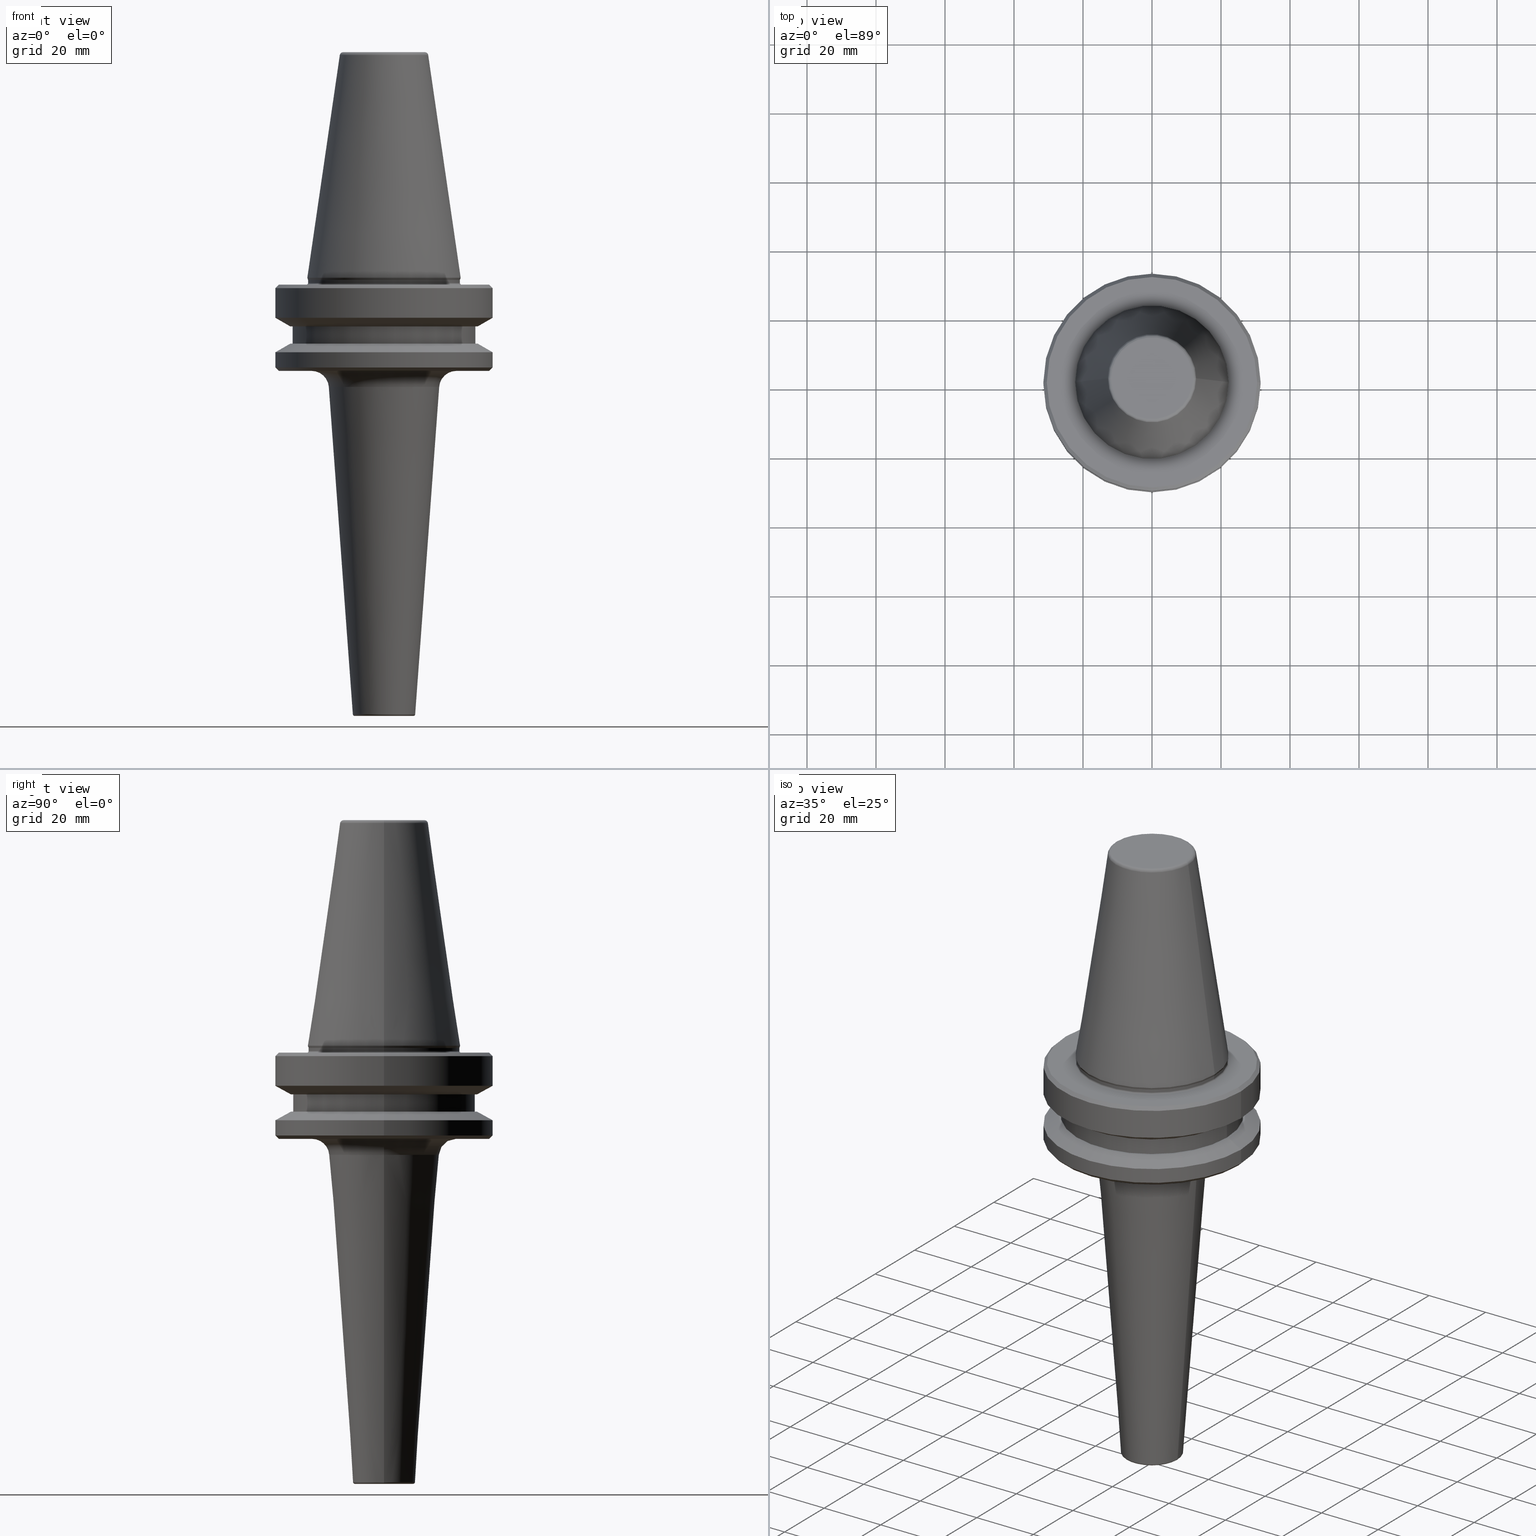
[diagram: canonical four-view strip — front | top / right | iso, engineering-drawing reading convention]
A machine part, canonical four-view strip (front | top / right | iso — engineering-drawing reading convention). The complete STEP part file that produces these views, byte-faithful:
ISO-10303-21;
HEADER;
FILE_DESCRIPTION (( 'STEP AP203' ),
    '1' );
FILE_NAME ('BT40 MCA10 100 AD+B-2.5G 25000 SL.STEP',
    '2019-05-24T10:03:41',
    ( '' ),
    ( '' ),
    'SwSTEP 2.0',
    'SolidWorks 2014',
    '' );
FILE_SCHEMA (( 'CONFIG_CONTROL_DESIGN' ));
ENDSEC;

DATA;
#1 = EDGE_CURVE ( 'NONE', #854, #669, #61, .T. ) ;
#2 = EDGE_LOOP ( 'NONE', ( #781, #268, #520, #284 ) ) ;
#3 = CARTESIAN_POINT ( 'NONE',  ( -31.50000000000008500, 3.857637417314172900E-015, -76.99985799368391800 ) ) ;
#4 = VERTEX_POINT ( 'NONE', #896 ) ;
#5 = ORIENTED_EDGE ( 'NONE', *, *, #776, .T. ) ;
#6 = DIRECTION ( 'NONE',  ( -0.07320446534292431000, 8.964961416550561000E-018, 0.9973169537583609400 ) ) ;
#7 = VERTEX_POINT ( 'NONE', #734 ) ;
#8 = CIRCLE ( 'NONE', #590, 11.82266927716813000 ) ;
#9 = EDGE_CURVE ( 'NONE', #932, #112, #900, .T. ) ;
#10 = AXIS2_PLACEMENT_3D ( 'NONE', #862, #826, #1049 ) ;
#11 = DIRECTION ( 'NONE',  ( -1.000000000000000000, 1.224646799147354400E-016, 0.0000000000000000000 ) ) ;
#12 = FACE_OUTER_BOUND ( 'NONE', #20, .T. ) ;
#13 = CIRCLE ( 'NONE', #547, 31.50000000000008500 ) ;
#14 = CIRCLE ( 'NONE', #736, 31.50000000000008500 ) ;
#15 = CARTESIAN_POINT ( 'NONE',  ( 26.50000000000019200, 0.0000000000000000000, 6.357346922996331500 ) ) ;
#16 = AXIS2_PLACEMENT_3D ( 'NONE', #856, #888, #186 ) ;
#17 = ORIENTED_EDGE ( 'NONE', *, *, #270, .F. ) ;
#18 = VECTOR ( 'NONE', #933, 1000.000000000000000 ) ;
#19 = ORIENTED_EDGE ( 'NONE', *, *, #768, .T. ) ;
#20 = EDGE_LOOP ( 'NONE', ( #63, #441 ) ) ;
#21 = CARTESIAN_POINT ( 'NONE',  ( 0.0000000000000000000, 0.0000000000000000000, -84.50000000000068200 ) ) ;
#22 = CYLINDRICAL_SURFACE ( 'NONE', #831, 22.00000000000002100 ) ;
#23 = ORIENTED_EDGE ( 'NONE', *, *, #433, .T. ) ;
#24 = DIRECTION ( 'NONE',  ( 1.000000000000000000, 0.0000000000000000000, 0.0000000000000000000 ) ) ;
#25 = EDGE_CURVE ( 'NONE', #187, #546, #469, .T. ) ;
#26 = ORIENTED_EDGE ( 'NONE', *, *, #176, .T. ) ;
#27 = AXIS2_PLACEMENT_3D ( 'NONE', #793, #607, #631 ) ;
#28 = CARTESIAN_POINT ( 'NONE',  ( 0.0000000000000000000, 0.0000000000000000000, -87.00014200631733300 ) ) ;
#29 = DIRECTION ( 'NONE',  ( 0.0000000000000000000, 0.0000000000000000000, -1.000000000000000000 ) ) ;
#30 = COORDINATED_UNIVERSAL_TIME_OFFSET ( 5, 30, .AHEAD. ) ;
#31 = VERTEX_POINT ( 'NONE', #586 ) ;
#32 = DIRECTION ( 'NONE',  ( 1.000000000000000000, 0.0000000000000000000, 0.0000000000000000000 ) ) ;
#33 = CIRCLE ( 'NONE', #98, 12.81220206925736900 ) ;
#34 = DIRECTION ( 'NONE',  ( -0.0000000000000000000, -0.0000000000000000000, 1.000000000000000000 ) ) ;
#35 = ADVANCED_FACE ( 'NONE', ( #259, #679 ), #653, .F. ) ;
#36 = AXIS2_PLACEMENT_3D ( 'NONE', #500, #180, #975 ) ;
#37 = DESIGN_CONTEXT ( 'detailed design', #867, 'design' ) ;
#38 = DIRECTION ( 'NONE',  ( 1.000000000000000000, 0.0000000000000000000, 0.0000000000000000000 ) ) ;
#39 = CIRCLE ( 'NONE', #434, 30.49999999999241900 ) ;
#40 = APPROVAL_DATE_TIME ( #478, #377 ) ;
#41 = CARTESIAN_POINT ( 'NONE',  ( 20.98658476879180800, 0.0000000000000000000, -97.40000000000806300 ) ) ;
#42 = EDGE_CURVE ( 'NONE', #904, #88, #870, .T. ) ;
#43 = DIRECTION ( 'NONE',  ( 1.000000000000000000, 0.0000000000000000000, 0.0000000000000000000 ) ) ;
#44 = ORIENTED_EDGE ( 'NONE', *, *, #346, .T. ) ;
#45 = CIRCLE ( 'NONE', #298, 11.82266927716813000 ) ;
#46 = EDGE_LOOP ( 'NONE', ( #775, #667, #751, #410 ) ) ;
#47 = EDGE_LOOP ( 'NONE', ( #842, #146 ) ) ;
#48 = PRODUCT_DEFINITION ( 'UNKNOWN', '', #326, #37 ) ;
#49 = CARTESIAN_POINT ( 'NONE',  ( -16.00000000000000400, 2.264775132424656500E-015, -97.03397767329343500 ) ) ;
#50 = CARTESIAN_POINT ( 'NONE',  ( 0.0000000000000000000, 0.0000000000000000000, -76.99985799368391800 ) ) ;
#51 = ORIENTED_EDGE ( 'NONE', *, *, #510, .F. ) ;
#52 = TOROIDAL_SURFACE ( 'NONE', #718, 8.535355570180616500, 0.4999999999996971900 ) ;
#53 = AXIS2_PLACEMENT_3D ( 'NONE', #702, #902, #588 ) ;
#54 = ADVANCED_FACE ( 'NONE', ( #286 ), #656, .F. ) ;
#55 = ORIENTED_EDGE ( 'NONE', *, *, #678, .F. ) ;
#56 = SECURITY_CLASSIFICATION_LEVEL ( 'unclassified' ) ;
#57 = ORIENTED_EDGE ( 'NONE', *, *, #512, .F. ) ;
#58 = LOCAL_TIME ( 15, 33, 41.00000000000000000, #283 ) ;
#59 = EDGE_LOOP ( 'NONE', ( #1044, #708 ) ) ;
#60 = PERSON_AND_ORGANIZATION_ROLE ( 'creator' ) ;
#61 = CIRCLE ( 'NONE', #170, 26.50000000000019200 ) ;
#62 =( NAMED_UNIT ( * ) PLANE_ANGLE_UNIT ( ) SI_UNIT ( $, .RADIAN. ) );
#63 = ORIENTED_EDGE ( 'NONE', *, *, #776, .F. ) ;
#64 = EDGE_CURVE ( 'NONE', #970, #75, #33, .T. ) ;
#65 = ADVANCED_FACE ( 'NONE', ( #234, #443 ), #796, .T. ) ;
#66 = CARTESIAN_POINT ( 'NONE',  ( 22.00000000000002100, 0.0000000000000000000, -66.08871321165987900 ) ) ;
#67 = EDGE_CURVE ( 'NONE', #274, #921, #635, .T. ) ;
#68 = DIRECTION ( 'NONE',  ( 1.000000000000000000, 0.0000000000000000000, 0.0000000000000000000 ) ) ;
#69 = CARTESIAN_POINT ( 'NONE',  ( 0.0000000000000000000, 0.0000000000000000000, -191.9366022326798300 ) ) ;
#70 = VECTOR ( 'NONE', #771, 1000.000000000000000 ) ;
#71 = LINE ( 'NONE', #742, #240 ) ;
#72 = DIRECTION ( 'NONE',  ( -0.0000000000000000000, -0.0000000000000000000, 1.000000000000000000 ) ) ;
#73 = CIRCLE ( 'NONE', #194, 27.16962701892256100 ) ;
#74 = ORIENTED_EDGE ( 'NONE', *, *, #907, .T. ) ;
#75 = VERTEX_POINT ( 'NONE', #1031 ) ;
#76 = EDGE_LOOP ( 'NONE', ( #150, #265 ) ) ;
#77 = AXIS2_PLACEMENT_3D ( 'NONE', #28, #766, #164 ) ;
#78 = ORIENTED_EDGE ( 'NONE', *, *, #997, .F. ) ;
#79 = CARTESIAN_POINT ( 'NONE',  ( -31.50000000000008500, 0.0000000000000000000, -87.00014200631733300 ) ) ;
#80 = DIRECTION ( 'NONE',  ( -0.0000000000000000000, -0.0000000000000000000, 1.000000000000000000 ) ) ;
#81 = DIRECTION ( 'NONE',  ( -0.0000000000000000000, -0.0000000000000000000, 1.000000000000000000 ) ) ;
#82 = ORIENTED_EDGE ( 'NONE', *, *, #313, .F. ) ;
#83 = DIRECTION ( 'NONE',  ( 1.000000000000000000, 0.0000000000000000000, 0.0000000000000000000 ) ) ;
#84 = DIRECTION ( 'NONE',  ( 0.0000000000000000000, 0.0000000000000000000, -1.000000000000000000 ) ) ;
#85 = ORIENTED_EDGE ( 'NONE', *, *, #1008, .T. ) ;
#86 = ORIENTED_EDGE ( 'NONE', *, *, #815, .F. ) ;
#87 = CARTESIAN_POINT ( 'NONE',  ( 0.0000000000000000000, 0.0000000000000000000, -191.9366022326798300 ) ) ;
#88 = VERTEX_POINT ( 'NONE', #569 ) ;
#89 = EDGE_CURVE ( 'NONE', #593, #115, #846, .T. ) ;
#90 = ORIENTED_EDGE ( 'NONE', *, *, #886, .T. ) ;
#91 = DIRECTION ( 'NONE',  ( -0.0000000000000000000, -0.0000000000000000000, 1.000000000000000000 ) ) ;
#92 = AXIS2_PLACEMENT_3D ( 'NONE', #684, #938, #581 ) ;
#93 = ORIENTED_EDGE ( 'NONE', *, *, #843, .T. ) ;
#94 = DIRECTION ( 'NONE',  ( 0.0000000000000000000, -1.000000000000000000, 0.0000000000000000000 ) ) ;
#95 = CARTESIAN_POINT ( 'NONE',  ( -31.50000000000008500, 3.857637417314172900E-015, -91.40000000000037500 ) ) ;
#96 = CALENDAR_DATE ( 2019, 24, 5 ) ;
#97 = EDGE_CURVE ( 'NONE', #921, #274, #422, .T. ) ;
#98 = AXIS2_PLACEMENT_3D ( 'NONE', #493, #244, #814 ) ;
#99 = TOROIDAL_SURFACE ( 'NONE', #53, 22.40000000000019800, 0.4000000000001546800 ) ;
#100 = CIRCLE ( 'NONE', #258, 22.22499999999993700 ) ;
#101 = DIRECTION ( 'NONE',  ( -0.0000000000000000000, -0.0000000000000000000, 1.000000000000000000 ) ) ;
#102 = LINE ( 'NONE', #863, #931 ) ;
#103 = DIRECTION ( 'NONE',  ( -0.0000000000000000000, -0.0000000000000000000, 1.000000000000000000 ) ) ;
#104 = ADVANCED_FACE ( 'NONE', ( #210 ), #1010, .T. ) ;
#105 = DIRECTION ( 'NONE',  ( 1.224646799147353200E-016, 1.000000000000000000, 0.0000000000000000000 ) ) ;
#106 = APPROVAL ( #948, 'UNSPECIFIED' ) ;
#107 = ADVANCED_FACE ( 'NONE', ( #1035, #825 ), #116, .F. ) ;
#108 = VERTEX_POINT ( 'NONE', #328 ) ;
#109 = VECTOR ( 'NONE', #560, 1000.000000000000000 ) ;
#110 = EDGE_CURVE ( 'NONE', #31, #972, #8, .T. ) ;
#111 = AXIS2_PLACEMENT_3D ( 'NONE', #378, #983, #874 ) ;
#112 = VERTEX_POINT ( 'NONE', #1033 ) ;
#113 = CARTESIAN_POINT ( 'NONE',  ( -22.00000000000002100, 2.694222958124179600E-015, 6.357346922996331500 ) ) ;
#114 = VERTEX_POINT ( 'NONE', #1004 ) ;
#115 = VERTEX_POINT ( 'NONE', #884 ) ;
#116 = PLANE ( 'NONE',  #640 ) ;
#117 = CARTESIAN_POINT ( 'NONE',  ( 0.0000000000000000000, 0.0000000000000000000, -67.40000000000034700 ) ) ;
#118 = ORIENTED_EDGE ( 'NONE', *, *, #678, .T. ) ;
#119 = DATE_AND_TIME ( #338, #553 ) ;
#120 = DIRECTION ( 'NONE',  ( 1.000000000000000000, 0.0000000000000000000, 0.0000000000000000000 ) ) ;
#121 = VERTEX_POINT ( 'NONE', #717 ) ;
#122 = DIRECTION ( 'NONE',  ( -0.0000000000000000000, -0.0000000000000000000, 1.000000000000000000 ) ) ;
#123 = CYLINDRICAL_SURFACE ( 'NONE', #943, 31.50000000000008500 ) ;
#124 = CIRCLE ( 'NONE', #1025, 8.535355570180616500 ) ;
#125 = FACE_OUTER_BOUND ( 'NONE', #676, .T. ) ;
#126 = EDGE_CURVE ( 'NONE', #921, #365, #397, .T. ) ;
#127 = AXIS2_PLACEMENT_3D ( 'NONE', #285, #162, #683 ) ;
#128 = DIRECTION ( 'NONE',  ( -0.0000000000000000000, -0.0000000000000000000, 1.000000000000000000 ) ) ;
#129 = DIRECTION ( 'NONE',  ( -0.0000000000000000000, -0.0000000000000000000, 1.000000000000000000 ) ) ;
#130 = ORIENTED_EDGE ( 'NONE', *, *, #492, .T. ) ;
#131 = DIRECTION ( 'NONE',  ( -0.0000000000000000000, -0.0000000000000000000, 1.000000000000000000 ) ) ;
#132 = DIRECTION ( 'NONE',  ( -0.0000000000000000000, -0.0000000000000000000, 1.000000000000000000 ) ) ;
#133 = CARTESIAN_POINT ( 'NONE',  ( 31.50000000000008500, 0.0000000000000000000, -68.40000000000046000 ) ) ;
#134 = AXIS2_PLACEMENT_3D ( 'NONE', #613, #601, #916 ) ;
#135 = ORIENTED_EDGE ( 'NONE', *, *, #617, .F. ) ;
#136 = CONICAL_SURFACE ( 'NONE', #127, 30.49999999999997200, 0.7853981633974482800 ) ;
#137 = CARTESIAN_POINT ( 'NONE',  ( 0.0000000000000000000, 0.0000000000000000000, -92.40000000000803500 ) ) ;
#138 = DIRECTION ( 'NONE',  ( 1.000000000000000000, 0.0000000000000000000, 0.0000000000000000000 ) ) ;
#139 = CARTESIAN_POINT ( 'NONE',  ( 0.0000000000000000000, 0.0000000000000000000, -87.00014200631733300 ) ) ;
#140 = ORIENTED_EDGE ( 'NONE', *, *, #399, .F. ) ;
#141 = ORIENTED_EDGE ( 'NONE', *, *, #626, .T. ) ;
#142 = ORIENTED_EDGE ( 'NONE', *, *, #238, .F. ) ;
#143 = ORIENTED_EDGE ( 'NONE', *, *, #617, .T. ) ;
#144 = DIRECTION ( 'NONE',  ( -0.7071067811865487900, 8.659560562354948900E-017, 0.7071067811865463500 ) ) ;
#145 = DIRECTION ( 'NONE',  ( -1.000000000000000000, 0.0000000000000000000, 0.0000000000000000000 ) ) ;
#146 = ORIENTED_EDGE ( 'NONE', *, *, #677, .F. ) ;
#147 = DIRECTION ( 'NONE',  ( 0.0000000000000000000, 0.0000000000000000000, -1.000000000000000000 ) ) ;
#148 = PERSON_AND_ORGANIZATION_ROLE ( 'creator' ) ;
#149 = CARTESIAN_POINT ( 'NONE',  ( -8.535355570180616500, 1.045279587860622400E-015, -191.9000000000083600 ) ) ;
#150 = ORIENTED_EDGE ( 'NONE', *, *, #110, .T. ) ;
#151 = CARTESIAN_POINT ( 'NONE',  ( -22.22499999999993700, 2.721777511104985000E-015, -65.40000000000057400 ) ) ;
#152 = APPROVAL_DATE_TIME ( #362, #106 ) ;
#153 = AXIS2_PLACEMENT_3D ( 'NONE', #840, #471, #145 ) ;
#154 = APPROVAL_ROLE ( '' ) ;
#155 = DIRECTION ( 'NONE',  ( -0.0000000000000000000, -0.0000000000000000000, 1.000000000000000000 ) ) ;
#156 = ORIENTED_EDGE ( 'NONE', *, *, #280, .F. ) ;
#157 = TOROIDAL_SURFACE ( 'NONE', #838, 11.82266927716813000, 0.9999999999999696900 ) ;
#158 = VECTOR ( 'NONE', #385, 1000.000000000000000 ) ;
#159 = AXIS2_PLACEMENT_3D ( 'NONE', #376, #645, #435 ) ;
#160 = CARTESIAN_POINT ( 'NONE',  ( -26.50000000000019200, 3.245314017740509400E-015, 6.357346922996331500 ) ) ;
#161 = DIRECTION ( 'NONE',  ( 1.000000000000000000, 0.0000000000000000000, 0.0000000000000000000 ) ) ;
#162 = DIRECTION ( 'NONE',  ( 0.0000000000000000000, 0.0000000000000000000, -1.000000000000000000 ) ) ;
#163 = EDGE_CURVE ( 'NONE', #108, #971, #589, .T. ) ;
#164 = DIRECTION ( 'NONE',  ( -1.000000000000000000, 0.0000000000000000000, 0.0000000000000000000 ) ) ;
#165 = VERTEX_POINT ( 'NONE', #325 ) ;
#166 = CYLINDRICAL_SURFACE ( 'NONE', #288, 31.50000000000008500 ) ;
#167 = ORIENTED_EDGE ( 'NONE', *, *, #428, .F. ) ;
#168 = CC_DESIGN_APPROVAL ( #106, ( #48 ) ) ;
#169 = PLANE ( 'NONE',  #189 ) ;
#170 = AXIS2_PLACEMENT_3D ( 'NONE', #1054, #72, #267 ) ;
#171 = CARTESIAN_POINT ( 'NONE',  ( 0.0000000000000000000, 0.0000000000000000000, -68.40000000000046000 ) ) ;
#172 = ORIENTED_EDGE ( 'NONE', *, *, #934, .F. ) ;
#173 = EDGE_CURVE ( 'NONE', #4, #183, #799, .T. ) ;
#174 = ORIENTED_EDGE ( 'NONE', *, *, #892, .F. ) ;
#175 = CARTESIAN_POINT ( 'NONE',  ( 31.50000000000008500, 3.857637417314172900E-015, -87.00014200631733300 ) ) ;
#176 = EDGE_CURVE ( 'NONE', #726, #885, #190, .T. ) ;
#177 = DIRECTION ( 'NONE',  ( 0.0000000000000000000, 0.0000000000000000000, -1.000000000000000000 ) ) ;
#178 = AXIS2_PLACEMENT_3D ( 'NONE', #372, #94, #339 ) ;
#179 = DIRECTION ( 'NONE',  ( 1.000000000000000000, 0.0000000000000000000, 0.0000000000000000000 ) ) ;
#180 = DIRECTION ( 'NONE',  ( 0.0000000000000000000, 0.0000000000000000000, -1.000000000000000000 ) ) ;
#181 = APPROVAL_PERSON_ORGANIZATION ( #388, #106, #154 ) ;
#182 = CARTESIAN_POINT ( 'NONE',  ( 0.0000000000000000000, 0.0000000000000000000, -79.50000000000012800 ) ) ;
#183 = VERTEX_POINT ( 'NONE', #894 ) ;
#184 = CONICAL_SURFACE ( 'NONE', #670, 12.81220206925736900, 0.1448138077623198300 ) ;
#185 = FACE_OUTER_BOUND ( 'NONE', #674, .T. ) ;
#186 = DIRECTION ( 'NONE',  ( 1.000000000000000000, 0.0000000000000000000, 0.0000000000000000000 ) ) ;
#187 = VERTEX_POINT ( 'NONE', #3 ) ;
#188 = CARTESIAN_POINT ( 'NONE',  ( -31.50000000000008500, 3.857637417314172900E-015, -76.99985799368391800 ) ) ;
#189 = AXIS2_PLACEMENT_3D ( 'NONE', #911, #84, #389 ) ;
#190 = CIRCLE ( 'NONE', #851, 26.50000000000019200 ) ;
#191 = DIRECTION ( 'NONE',  ( 1.000000000000000000, 0.0000000000000000000, 0.0000000000000000000 ) ) ;
#192 = CONICAL_SURFACE ( 'NONE', #906, 16.00000000000000400, 0.07327000600964593500 ) ;
#193 = DIRECTION ( 'NONE',  ( -0.0000000000000000000, -0.0000000000000000000, 1.000000000000000000 ) ) ;
#194 = AXIS2_PLACEMENT_3D ( 'NONE', #21, #798, #120 ) ;
#195 = EDGE_LOOP ( 'NONE', ( #135, #539 ) ) ;
#196 = LINE ( 'NONE', #379, #1043 ) ;
#197 = DIRECTION ( 'NONE',  ( -0.0000000000000000000, -0.0000000000000000000, 1.000000000000000000 ) ) ;
#198 = EDGE_CURVE ( 'NONE', #279, #329, #608, .T. ) ;
#199 = DIRECTION ( 'NONE',  ( 1.000000000000000000, 0.0000000000000000000, 0.0000000000000000000 ) ) ;
#200 = CARTESIAN_POINT ( 'NONE',  ( 0.0000000000000000000, 0.0000000000000000000, -1.000000000000334000 ) ) ;
#201 = EDGE_CURVE ( 'NONE', #115, #593, #984, .T. ) ;
#202 = EDGE_LOOP ( 'NONE', ( #5, #809, #521, #704 ) ) ;
#203 = AXIS2_PLACEMENT_3D ( 'NONE', #69, #34, #1038 ) ;
#204 = CIRCLE ( 'NONE', #866, 0.9999999999999696900 ) ;
#205 = CARTESIAN_POINT ( 'NONE',  ( 0.0000000000000000000, 0.0000000000000000000, -97.03397767329343500 ) ) ;
#206 = ORIENTED_EDGE ( 'NONE', *, *, #173, .T. ) ;
#207 = EDGE_CURVE ( 'NONE', #593, #1020, #559, .T. ) ;
#208 = CARTESIAN_POINT ( 'NONE',  ( -20.98658476879180800, 2.570115386213548200E-015, -92.40000000000806300 ) ) ;
#209 = CARTESIAN_POINT ( 'NONE',  ( 0.0000000000000000000, 0.0000000000000000000, -97.03397767329343500 ) ) ;
#210 = FACE_OUTER_BOUND ( 'NONE', #271, .T. ) ;
#211 = CARTESIAN_POINT ( 'NONE',  ( 0.0000000000000000000, 0.0000000000000000000, -66.08871321165987900 ) ) ;
#212 = CIRCLE ( 'NONE', #953, 31.50000000000008500 ) ;
#213 = CARTESIAN_POINT ( 'NONE',  ( 0.0000000000000000000, 0.0000000000000000000, -66.90000000000040400 ) ) ;
#214 = DIRECTION ( 'NONE',  ( 0.8660254037844383700, 0.0000000000000000000, 0.5000000000000003300 ) ) ;
#215 = CYLINDRICAL_SURFACE ( 'NONE', #705, 31.50000000000008500 ) ;
#216 = ORIENTED_EDGE ( 'NONE', *, *, #815, .T. ) ;
#217 = CONICAL_SURFACE ( 'NONE', #634, 31.50000000000008500, 1.047197551196597400 ) ;
#218 = CC_DESIGN_PERSON_AND_ORGANIZATION_ASSIGNMENT ( #976, #60, ( #48 ) ) ;
#219 = DIRECTION ( 'NONE',  ( 1.000000000000000000, 0.0000000000000000000, 0.0000000000000000000 ) ) ;
#220 = EDGE_LOOP ( 'NONE', ( #390, #1016 ) ) ;
#221 = EDGE_LOOP ( 'NONE', ( #82, #1046, #269, #552 ) ) ;
#222 = CARTESIAN_POINT ( 'NONE',  ( 0.0000000000000000000, 0.0000000000000000000, -66.90000000000040400 ) ) ;
#223 = AXIS2_PLACEMENT_3D ( 'NONE', #50, #480, #579 ) ;
#224 = DIRECTION ( 'NONE',  ( 1.000000000000000000, 0.0000000000000000000, 0.0000000000000000000 ) ) ;
#225 = AXIS2_PLACEMENT_3D ( 'NONE', #977, #80, #38 ) ;
#226 = VERTEX_POINT ( 'NONE', #402 ) ;
#227 = CARTESIAN_POINT ( 'NONE',  ( 16.00000000000000400, 0.0000000000000000000, -97.03397767329343500 ) ) ;
#228 = ADVANCED_FACE ( 'NONE', ( #125 ), #958, .F. ) ;
#229 = PERSON_AND_ORGANIZATION_ROLE ( 'classification_officer' ) ;
#230 = EDGE_CURVE ( 'NONE', #352, #773, #765, .T. ) ;
#231 = ORIENTED_EDGE ( 'NONE', *, *, #417, .T. ) ;
#232 = APPROVAL_DATE_TIME ( #440, #747 ) ;
#233 = VERTEX_POINT ( 'NONE', #95 ) ;
#234 = FACE_OUTER_BOUND ( 'NONE', #940, .T. ) ;
#235 = EDGE_CURVE ( 'NONE', #7, #803, #102, .T. ) ;
#236 = AXIS2_PLACEMENT_3D ( 'NONE', #87, #439, #529 ) ;
#237 = CIRCLE ( 'NONE', #795, 0.4999999999996968500 ) ;
#238 = EDGE_CURVE ( 'NONE', #970, #114, #322, .T. ) ;
#239 = TOROIDAL_SURFACE ( 'NONE', #495, 8.535355570180616500, 0.4999999999996971900 ) ;
#240 = VECTOR ( 'NONE', #659, 1000.000000000000000 ) ;
#241 = CARTESIAN_POINT ( 'NONE',  ( 0.0000000000000000000, 0.0000000000000000000, -65.40000000000057400 ) ) ;
#242 = ORIENTED_EDGE ( 'NONE', *, *, #626, .F. ) ;
#243 = FACE_OUTER_BOUND ( 'NONE', #375, .T. ) ;
#244 = DIRECTION ( 'NONE',  ( -0.0000000000000000000, -0.0000000000000000000, 1.000000000000000000 ) ) ;
#245 = ORIENTED_EDGE ( 'NONE', *, *, #490, .F. ) ;
#246 = DIRECTION ( 'NONE',  ( -0.0000000000000000000, -0.0000000000000000000, 1.000000000000000000 ) ) ;
#247 = AXIS2_PLACEMENT_3D ( 'NONE', #171, #598, #637 ) ;
#248 = DIRECTION ( 'NONE',  ( 0.1443081888881795900, 1.767265616126607700E-017, -0.9895327920891826600 ) ) ;
#249 = CARTESIAN_POINT ( 'NONE',  ( 0.0000000000000000000, 0.0000000000000000000, -67.40000000000034700 ) ) ;
#250 = ADVANCED_FACE ( 'NONE', ( #505 ), #481, .T. ) ;
#251 = DIRECTION ( 'NONE',  ( 0.0000000000000000000, -0.0000000000000000000, 1.000000000000000000 ) ) ;
#252 = SHAPE_DEFINITION_REPRESENTATION ( #824, #610 ) ;
#253 = DIRECTION ( 'NONE',  ( -0.0000000000000000000, -0.0000000000000000000, 1.000000000000000000 ) ) ;
#254 = ORIENTED_EDGE ( 'NONE', *, *, #564, .T. ) ;
#255 = VERTEX_POINT ( 'NONE', #66 ) ;
#256 = APPROVAL_PERSON_ORGANIZATION ( #465, #747, #548 ) ;
#257 = VERTEX_POINT ( 'NONE', #447 ) ;
#258 = AXIS2_PLACEMENT_3D ( 'NONE', #591, #193, #988 ) ;
#259 = FACE_BOUND ( 'NONE', #643, .T. ) ;
#260 = DIRECTION ( 'NONE',  ( -0.0000000000000000000, -0.0000000000000000000, 1.000000000000000000 ) ) ;
#261 = AXIS2_PLACEMENT_3D ( 'NONE', #923, #850, #595 ) ;
#262 = DIRECTION ( 'NONE',  ( -0.0000000000000000000, -0.0000000000000000000, 1.000000000000000000 ) ) ;
#263 = FACE_OUTER_BOUND ( 'NONE', #357, .T. ) ;
#264 = FACE_OUTER_BOUND ( 'NONE', #942, .T. ) ;
#265 = ORIENTED_EDGE ( 'NONE', *, *, #315, .T. ) ;
#266 = CIRCLE ( 'NONE', #247, 31.50000000000008500 ) ;
#267 = DIRECTION ( 'NONE',  ( 1.000000000000000000, 0.0000000000000000000, 0.0000000000000000000 ) ) ;
#268 = ORIENTED_EDGE ( 'NONE', *, *, #89, .F. ) ;
#269 = ORIENTED_EDGE ( 'NONE', *, *, #238, .T. ) ;
#270 = EDGE_CURVE ( 'NONE', #114, #121, #716, .T. ) ;
#271 = EDGE_LOOP ( 'NONE', ( #987, #156, #1032, #85 ) ) ;
#272 = CC_DESIGN_DATE_AND_TIME_ASSIGNMENT ( #119, #786, ( #48 ) ) ;
#273 = DIRECTION ( 'NONE',  ( 1.000000000000000000, 0.0000000000000000000, 0.0000000000000000000 ) ) ;
#274 = VERTEX_POINT ( 'NONE', #208 ) ;
#275 = LINE ( 'NONE', #1039, #489 ) ;
#276 = DIRECTION ( 'NONE',  ( 1.000000000000000000, 0.0000000000000000000, 0.0000000000000000000 ) ) ;
#277 = EDGE_CURVE ( 'NONE', #257, #596, #912, .T. ) ;
#278 = AXIS2_PLACEMENT_3D ( 'NONE', #872, #1005, #1047 ) ;
#279 = VERTEX_POINT ( 'NONE', #992 ) ;
#280 = EDGE_CURVE ( 'NONE', #183, #4, #73, .T. ) ;
#281 = DIRECTION ( 'NONE',  ( -0.0000000000000000000, -0.0000000000000000000, 1.000000000000000000 ) ) ;
#282 = DIRECTION ( 'NONE',  ( -1.000000000000000000, 1.224646799147357600E-016, 0.0000000000000000000 ) ) ;
#283 = COORDINATED_UNIVERSAL_TIME_OFFSET ( 5, 30, .AHEAD. ) ;
#284 = ORIENTED_EDGE ( 'NONE', *, *, #304, .T. ) ;
#285 = CARTESIAN_POINT ( 'NONE',  ( 0.0000000000000000000, 0.0000000000000000000, -67.40000000000034700 ) ) ;
#286 = FACE_OUTER_BOUND ( 'NONE', #482, .T. ) ;
#287 = DIRECTION ( 'NONE',  ( -0.0000000000000000000, -0.0000000000000000000, 1.000000000000000000 ) ) ;
#288 = AXIS2_PLACEMENT_3D ( 'NONE', #299, #881, #43 ) ;
#289 = FACE_OUTER_BOUND ( 'NONE', #844, .T. ) ;
#290 = FACE_OUTER_BOUND ( 'NONE', #695, .T. ) ;
#291 = DIRECTION ( 'NONE',  ( 1.000000000000000000, 0.0000000000000000000, 0.0000000000000000000 ) ) ;
#292 = LINE ( 'NONE', #756, #879 ) ;
#293 = CARTESIAN_POINT ( 'NONE',  ( 0.0000000000000000000, 0.0000000000000000000, -87.00014200631733300 ) ) ;
#294 = ORIENTED_EDGE ( 'NONE', *, *, #871, .F. ) ;
#295 = DIRECTION ( 'NONE',  ( 1.000000000000000000, 0.0000000000000000000, 0.0000000000000000000 ) ) ;
#296 = ORIENTED_EDGE ( 'NONE', *, *, #490, .T. ) ;
#297 = CARTESIAN_POINT ( 'NONE',  ( 30.49999999999997200, 3.735172737399423600E-015, -67.40000000000034700 ) ) ;
#298 = AXIS2_PLACEMENT_3D ( 'NONE', #956, #978, #1012 ) ;
#299 = CARTESIAN_POINT ( 'NONE',  ( 0.0000000000000000000, 0.0000000000000000000, 6.357346922996331500 ) ) ;
#300 =( LENGTH_UNIT ( ) NAMED_UNIT ( * ) SI_UNIT ( .MILLI., .METRE. ) );
#301 = ORIENTED_EDGE ( 'NONE', *, *, #235, .T. ) ;
#302 = FACE_OUTER_BOUND ( 'NONE', #202, .T. ) ;
#303 = EDGE_LOOP ( 'NONE', ( #90, #606, #594, #945 ) ) ;
#304 = EDGE_CURVE ( 'NONE', #1020, #723, #266, .T. ) ;
#305 = EDGE_LOOP ( 'NONE', ( #545, #342, #821, #878 ) ) ;
#306 = ORIENTED_EDGE ( 'NONE', *, *, #682, .T. ) ;
#307 = ORIENTED_EDGE ( 'NONE', *, *, #428, .T. ) ;
#308 = CARTESIAN_POINT ( 'NONE',  ( 0.0000000000000000000, 0.0000000000000000000, -65.95190515433003500 ) ) ;
#309 = EDGE_LOOP ( 'NONE', ( #882, #301, #898, #294 ) ) ;
#310 = APPLICATION_PROTOCOL_DEFINITION ( 'international standard', 'config_control_design', 1994, #867 ) ;
#311 = ORIENTED_EDGE ( 'NONE', *, *, #703, .T. ) ;
#312 = CARTESIAN_POINT ( 'NONE',  ( -22.40000000000019800, 2.743208830090095500E-015, -66.08871321165987900 ) ) ;
#313 = EDGE_CURVE ( 'NONE', #75, #121, #292, .T. ) ;
#314 = LOCAL_TIME ( 15, 33, 41.00000000000000000, #525 ) ;
#315 = EDGE_CURVE ( 'NONE', #972, #31, #45, .T. ) ;
#316 = EDGE_CURVE ( 'NONE', #165, #404, #666, .T. ) ;
#317 = CIRCLE ( 'NONE', #995, 26.50000000000019200 ) ;
#318 = VECTOR ( 'NONE', #103, 1000.000000000000000 ) ;
#319 = DIRECTION ( 'NONE',  ( -0.0000000000000000000, -0.0000000000000000000, 1.000000000000000000 ) ) ;
#320 = PERSON ( 'UNSPECIFIED', 'UNSPECIFIED', 'UNSPECIFIED', ('UNSPECIFIED'), ('UNSPECIFIED'), ('UNSPECIFIED') ) ;
#321 = AXIS2_PLACEMENT_3D ( 'NONE', #603, #251, #330 ) ;
#322 = LINE ( 'NONE', #536, #532 ) ;
#323 = ORIENTED_EDGE ( 'NONE', *, *, #677, .T. ) ;
#324 = CARTESIAN_POINT ( 'NONE',  ( 30.49999999999241900, 0.0000000000000000000, -92.40000000000803500 ) ) ;
#325 = CARTESIAN_POINT ( 'NONE',  ( -22.00000000000002100, 2.724839128102860200E-015, -66.90000000000040400 ) ) ;
#326 = PRODUCT_DEFINITION_FORMATION_WITH_SPECIFIED_SOURCE ( 'ANY', '', #817, .NOT_KNOWN. ) ;
#327 = VECTOR ( 'NONE', #1009, 1000.000000000000000 ) ;
#328 = CARTESIAN_POINT ( 'NONE',  ( -30.49999999999241900, 3.796405077356336000E-015, -92.40000000000803500 ) ) ;
#329 = VERTEX_POINT ( 'NONE', #873 ) ;
#330 = DIRECTION ( 'NONE',  ( 1.000000000000000000, 0.0000000000000000000, 0.0000000000000000000 ) ) ;
#331 = ORIENTED_EDGE ( 'NONE', *, *, #692, .F. ) ;
#332 = AXIS2_PLACEMENT_3D ( 'NONE', #209, #700, #24 ) ;
#333 = EDGE_LOOP ( 'NONE', ( #524, #651, #577, #615 ) ) ;
#334 = EDGE_LOOP ( 'NONE', ( #296, #26 ) ) ;
#335 = CARTESIAN_POINT ( 'NONE',  ( 8.535355570180616500, 0.0000000000000000000, -192.4000000000080800 ) ) ;
#336 = EDGE_LOOP ( 'NONE', ( #167, #306, #518, #691 ) ) ;
#337 = MANIFOLD_SOLID_BREP ( 'Revolve1', #750 ) ;
#338 = CALENDAR_DATE ( 2019, 24, 5 ) ;
#339 = DIRECTION ( 'NONE',  ( 0.0000000000000000000, 0.0000000000000000000, -1.000000000000000000 ) ) ;
#340 = DIRECTION ( 'NONE',  ( 0.7071067811865487900, 0.0000000000000000000, 0.7071067811865463500 ) ) ;
#341 = DIRECTION ( 'NONE',  ( 1.000000000000000000, 0.0000000000000000000, 0.0000000000000000000 ) ) ;
#342 = ORIENTED_EDGE ( 'NONE', *, *, #892, .T. ) ;
#343 = FACE_OUTER_BOUND ( 'NONE', #305, .T. ) ;
#344 = VECTOR ( 'NONE', #805, 1000.000000000000000 ) ;
#345 = VECTOR ( 'NONE', #763, 1000.000000000000000 ) ;
#346 = EDGE_CURVE ( 'NONE', #233, #257, #688, .T. ) ;
#347 = ADVANCED_FACE ( 'NONE', ( #243 ), #452, .T. ) ;
#348 = DIRECTION ( 'NONE',  ( 1.000000000000000000, 0.0000000000000000000, 0.0000000000000000000 ) ) ;
#349 = AXIS2_PLACEMENT_3D ( 'NONE', #393, #860, #802 ) ;
#350 = DIRECTION ( 'NONE',  ( -0.0000000000000000000, -0.0000000000000000000, 1.000000000000000000 ) ) ;
#351 = CARTESIAN_POINT ( 'NONE',  ( 0.0000000000000000000, 0.0000000000000000000, -4.440892098500626200E-013 ) ) ;
#352 = VERTEX_POINT ( 'NONE', #820 ) ;
#353 = LINE ( 'NONE', #414, #966 ) ;
#354 = AXIS2_PLACEMENT_3D ( 'NONE', #222, #969, #1052 ) ;
#355 = ORIENTED_EDGE ( 'NONE', *, *, #715, .F. ) ;
#356 = ORIENTED_EDGE ( 'NONE', *, *, #67, .F. ) ;
#357 = EDGE_LOOP ( 'NONE', ( #394, #44, #920, #1013 ) ) ;
#358 = EDGE_CURVE ( 'NONE', #904, #121, #855, .T. ) ;
#359 = ORIENTED_EDGE ( 'NONE', *, *, #609, .T. ) ;
#360 = CARTESIAN_POINT ( 'NONE',  ( -20.98658476879180800, 2.570115386213548200E-015, -97.40000000000806300 ) ) ;
#361 = DIRECTION ( 'NONE',  ( -0.0000000000000000000, -0.0000000000000000000, 1.000000000000000000 ) ) ;
#362 = DATE_AND_TIME ( #580, #787 ) ;
#363 = CARTESIAN_POINT ( 'NONE',  ( 26.50000000000019200, 0.0000000000000000000, -79.50000000000012800 ) ) ;
#364 = AXIS2_PLACEMENT_3D ( 'NONE', #213, #828, #453 ) ;
#365 = VERTEX_POINT ( 'NONE', #227 ) ;
#366 = CARTESIAN_POINT ( 'NONE',  ( 0.0000000000000000000, 0.0000000000000000000, -76.99985799368391800 ) ) ;
#367 = VECTOR ( 'NONE', #605, 1000.000000000000100 ) ;
#368 = CYLINDRICAL_SURFACE ( 'NONE', #92, 26.50000000000019200 ) ;
#369 = EDGE_CURVE ( 'NONE', #108, #233, #1045, .T. ) ;
#370 = AXIS2_PLACEMENT_3D ( 'NONE', #249, #81, #83 ) ;
#371 = CIRCLE ( 'NONE', #819, 22.00000000000002100 ) ;
#372 = CARTESIAN_POINT ( 'NONE',  ( 22.49999999999996400, 0.0000000000000000000, -66.90000000000040400 ) ) ;
#373 = ORIENTED_EDGE ( 'NONE', *, *, #97, .T. ) ;
#374 = CIRCLE ( 'NONE', #236, 9.034014047059498500 ) ;
#375 = EDGE_LOOP ( 'NONE', ( #93, #499, #732, #1001 ) ) ;
#376 = CARTESIAN_POINT ( 'NONE',  ( 0.0000000000000000000, 0.0000000000000000000, -66.90000000000040400 ) ) ;
#377 = APPROVAL ( #706, 'UNSPECIFIED' ) ;
#378 = CARTESIAN_POINT ( 'NONE',  ( -11.82266927716813000, 1.447859408766170200E-015, -1.000000000000334000 ) ) ;
#379 = CARTESIAN_POINT ( 'NONE',  ( 31.50000000000008500, 0.0000000000000000000, -91.40000000000037500 ) ) ;
#380 = VERTEX_POINT ( 'NONE', #789 ) ;
#381 = UNCERTAINTY_MEASURE_WITH_UNIT (LENGTH_MEASURE( 1.000000000000000100E-005 ), #300, 'distance_accuracy_value', 'NONE');
#382 = ORIENTED_EDGE ( 'NONE', *, *, #1, .T. ) ;
#383 = DIRECTION ( 'NONE',  ( -0.0000000000000000000, -0.0000000000000000000, 1.000000000000000000 ) ) ;
#384 = ORIENTED_EDGE ( 'NONE', *, *, #280, .T. ) ;
#385 = DIRECTION ( 'NONE',  ( -0.8660254037844332700, 0.0000000000000000000, -0.5000000000000093300 ) ) ;
#386 = AXIS2_PLACEMENT_3D ( 'NONE', #117, #319, #199 ) ;
#387 = APPROVAL_STATUS ( 'not_yet_approved' ) ;
#388 = PERSON_AND_ORGANIZATION ( #320, #818 ) ;
#389 = DIRECTION ( 'NONE',  ( -1.000000000000000000, 0.0000000000000000000, -0.0000000000000000000 ) ) ;
#390 = ORIENTED_EDGE ( 'NONE', *, *, #9, .F. ) ;
#391 = FACE_OUTER_BOUND ( 'NONE', #689, .T. ) ;
#392 = APPROVAL_ROLE ( '' ) ;
#393 = CARTESIAN_POINT ( 'NONE',  ( 0.0000000000000000000, 0.0000000000000000000, -91.40000000000037500 ) ) ;
#394 = ORIENTED_EDGE ( 'NONE', *, *, #1048, .F. ) ;
#395 = APPLICATION_PROTOCOL_DEFINITION ( 'international standard', 'config_control_design', 1994, #1030 ) ;
#396 = ADVANCED_FACE ( 'NONE', ( #619, #644 ), #624, .F. ) ;
#397 = CIRCLE ( 'NONE', #687, 5.000000000000004400 ) ;
#398 = DIRECTION ( 'NONE',  ( -0.0000000000000000000, -0.0000000000000000000, 1.000000000000000000 ) ) ;
#399 = EDGE_CURVE ( 'NONE', #255, #549, #409, .T. ) ;
#400 = AXIS2_PLACEMENT_3D ( 'NONE', #523, #758, #455 ) ;
#401 = DIRECTION ( 'NONE',  ( -0.0000000000000000000, -0.0000000000000000000, 1.000000000000000000 ) ) ;
#402 = CARTESIAN_POINT ( 'NONE',  ( -31.50000000000008500, 3.857637417314172900E-015, -87.00014200631733300 ) ) ;
#403 = TOROIDAL_SURFACE ( 'NONE', #10, 20.98658476879180800, 5.000000000000009800 ) ;
#404 = VERTEX_POINT ( 'NONE', #418 ) ;
#405 = CARTESIAN_POINT ( 'NONE',  ( 22.02412295168553100, 0.0000000000000000000, -65.95190515433003500 ) ) ;
#406 = CARTESIAN_POINT ( 'NONE',  ( 0.0000000000000000000, 0.0000000000000000000, -87.00014200631733300 ) ) ;
#407 = AXIS2_PLACEMENT_3D ( 'NONE', #488, #197, #915 ) ;
#408 = ORIENTED_EDGE ( 'NONE', *, *, #277, .F. ) ;
#409 = CIRCLE ( 'NONE', #570, 22.00000000000002100 ) ;
#410 = ORIENTED_EDGE ( 'NONE', *, *, #304, .F. ) ;
#411 = CARTESIAN_POINT ( 'NONE',  ( 27.16962701892322600, 0.0000000000000000000, -79.50000000000012800 ) ) ;
#412 = ORIENTED_EDGE ( 'NONE', *, *, #907, .F. ) ;
#413 = CARTESIAN_POINT ( 'NONE',  ( 0.0000000000000000000, 0.0000000000000000000, -92.40000000000804900 ) ) ;
#414 = CARTESIAN_POINT ( 'NONE',  ( 31.50000000000008500, 0.0000000000000000000, -76.99985799368391800 ) ) ;
#415 = ADVANCED_FACE ( 'NONE', ( #430 ), #184, .T. ) ;
#416 = CARTESIAN_POINT ( 'NONE',  ( 0.0000000000000000000, 0.0000000000000000000, 6.357346922996331500 ) ) ;
#417 = EDGE_CURVE ( 'NONE', #274, #803, #807, .T. ) ;
#418 = CARTESIAN_POINT ( 'NONE',  ( 22.00000000000002100, 0.0000000000000000000, -66.90000000000040400 ) ) ;
#419 = AXIS2_PLACEMENT_3D ( 'NONE', #308, #350, #460 ) ;
#420 = ORIENTED_EDGE ( 'NONE', *, *, #1023, .T. ) ;
#421 = CARTESIAN_POINT ( 'NONE',  ( -26.50000000000019200, 3.245314017740509400E-015, -84.50000000000068200 ) ) ;
#422 = CIRCLE ( 'NONE', #424, 20.98658476879180800 ) ;
#423 = EDGE_CURVE ( 'NONE', #4, #596, #1018, .T. ) ;
#424 = AXIS2_PLACEMENT_3D ( 'NONE', #413, #575, #810 ) ;
#425 = VECTOR ( 'NONE', #246, 1000.000000000000000 ) ;
#426 = EDGE_LOOP ( 'NONE', ( #51, #811, #311, #451 ) ) ;
#427 = CIRCLE ( 'NONE', #650, 26.50000000000019200 ) ;
#428 = EDGE_CURVE ( 'NONE', #112, #187, #584, .T. ) ;
#429 = ORIENTED_EDGE ( 'NONE', *, *, #313, .T. ) ;
#430 = FACE_OUTER_BOUND ( 'NONE', #221, .T. ) ;
#431 = CC_DESIGN_APPROVAL ( #377, ( #326 ) ) ;
#432 = CARTESIAN_POINT ( 'NONE',  ( 31.50000000000008500, 0.0000000000000000000, 6.357346922996331500 ) ) ;
#433 = EDGE_CURVE ( 'NONE', #803, #365, #981, .T. ) ;
#434 = AXIS2_PLACEMENT_3D ( 'NONE', #649, #122, #638 ) ;
#435 = DIRECTION ( 'NONE',  ( 1.000000000000000000, 0.0000000000000000000, 0.0000000000000000000 ) ) ;
#436 = DIRECTION ( 'NONE',  ( 1.000000000000000000, 0.0000000000000000000, 0.0000000000000000000 ) ) ;
#437 = ORIENTED_EDGE ( 'NONE', *, *, #358, .F. ) ;
#438 = ORIENTED_EDGE ( 'NONE', *, *, #230, .T. ) ;
#439 = DIRECTION ( 'NONE',  ( -0.0000000000000000000, -0.0000000000000000000, 1.000000000000000000 ) ) ;
#440 = DATE_AND_TIME ( #654, #868 ) ;
#441 = ORIENTED_EDGE ( 'NONE', *, *, #230, .F. ) ;
#442 = CARTESIAN_POINT ( 'NONE',  ( 31.50000000000008500, 0.0000000000000000000, -87.00014200631733300 ) ) ;
#443 = FACE_BOUND ( 'NONE', #47, .T. ) ;
#444 = CARTESIAN_POINT ( 'NONE',  ( -31.50000000000008500, 3.857637417314172900E-015, -68.40000000000046000 ) ) ;
#445 = CIRCLE ( 'NONE', #845, 0.4000000000001536800 ) ;
#446 = AXIS2_PLACEMENT_3D ( 'NONE', #293, #778, #276 ) ;
#447 = CARTESIAN_POINT ( 'NONE',  ( 31.50000000000008500, 0.0000000000000000000, -91.40000000000037500 ) ) ;
#448 = CONICAL_SURFACE ( 'NONE', #225, 22.22499999999993700, 0.3490658503994643600 ) ;
#449 = CONICAL_SURFACE ( 'NONE', #526, 30.49999999999997200, 0.7853981633974482800 ) ;
#450 = AXIS2_PLACEMENT_3D ( 'NONE', #625, #661, #341 ) ;
#451 = ORIENTED_EDGE ( 'NONE', *, *, #315, .F. ) ;
#452 = TOROIDAL_SURFACE ( 'NONE', #513, 11.82266927716813000, 0.9999999999999696900 ) ;
#453 = DIRECTION ( 'NONE',  ( 1.000000000000000000, 0.0000000000000000000, 0.0000000000000000000 ) ) ;
#454 = DIRECTION ( 'NONE',  ( 1.000000000000000000, 0.0000000000000000000, 0.0000000000000000000 ) ) ;
#455 = DIRECTION ( 'NONE',  ( 0.0000000000000000000, 0.0000000000000000000, -1.000000000000000000 ) ) ;
#456 = CARTESIAN_POINT ( 'NONE',  ( -26.50000000000019200, 3.245314017740509400E-015, -79.50000000000012800 ) ) ;
#457 = DIRECTION ( 'NONE',  ( -0.1443081888881795900, 0.0000000000000000000, -0.9895327920891826600 ) ) ;
#458 = ADVANCED_FACE ( 'NONE', ( #761 ), #123, .T. ) ;
#459 = FACE_OUTER_BOUND ( 'NONE', #749, .T. ) ;
#460 = DIRECTION ( 'NONE',  ( 1.000000000000000000, 0.0000000000000000000, 0.0000000000000000000 ) ) ;
#461 = DATE_TIME_ROLE ( 'classification_date' ) ;
#462 = ORIENTED_EDGE ( 'NONE', *, *, #97, .F. ) ;
#463 = CARTESIAN_POINT ( 'NONE',  ( 26.50000000000019200, 0.0000000000000000000, -84.50000000000068200 ) ) ;
#464 = DIRECTION ( 'NONE',  ( 1.000000000000000000, 0.0000000000000000000, 0.0000000000000000000 ) ) ;
#465 = PERSON_AND_ORGANIZATION ( #320, #818 ) ;
#466 = DIRECTION ( 'NONE',  ( 1.224646799147353200E-016, 1.000000000000000000, 0.0000000000000000000 ) ) ;
#467 = ORIENTED_EDGE ( 'NONE', *, *, #512, .T. ) ;
#468 = AXIS2_PLACEMENT_3D ( 'NONE', #351, #989, #711 ) ;
#469 = CIRCLE ( 'NONE', #223, 31.50000000000008500 ) ;
#470 = ADVANCED_FACE ( 'NONE', ( #557 ), #157, .T. ) ;
#471 = DIRECTION ( 'NONE',  ( 0.0000000000000000000, 0.0000000000000000000, -1.000000000000000000 ) ) ;
#472 = ADVANCED_FACE ( 'NONE', ( #737 ), #929, .T. ) ;
#473 = DIRECTION ( 'NONE',  ( 1.000000000000000000, 0.0000000000000000000, 0.0000000000000000000 ) ) ;
#474 = DIRECTION ( 'NONE',  ( 1.224646799147353200E-016, 1.000000000000000000, 0.0000000000000000000 ) ) ;
#475 = CARTESIAN_POINT ( 'NONE',  ( 0.0000000000000000000, 0.0000000000000000000, 6.357346922996331500 ) ) ;
#476 = AXIS2_PLACEMENT_3D ( 'NONE', #406, #177, #754 ) ;
#477 = CIRCLE ( 'NONE', #332, 16.00000000000000400 ) ;
#478 = DATE_AND_TIME ( #96, #314 ) ;
#479 = CARTESIAN_POINT ( 'NONE',  ( 0.0000000000000000000, 0.0000000000000000000, -91.40000000000037500 ) ) ;
#480 = DIRECTION ( 'NONE',  ( -0.0000000000000000000, -0.0000000000000000000, 1.000000000000000000 ) ) ;
#481 = CONICAL_SURFACE ( 'NONE', #77, 31.50000000000008500, 1.047197551196587000 ) ;
#482 = EDGE_LOOP ( 'NONE', ( #172, #355, #467, #709 ) ) ;
#483 = ORIENTED_EDGE ( 'NONE', *, *, #358, .T. ) ;
#484 = ORIENTED_EDGE ( 'NONE', *, *, #42, .T. ) ;
#485 = DIRECTION ( 'NONE',  ( 0.0000000000000000000, 0.0000000000000000000, -1.000000000000000000 ) ) ;
#486 = ORIENTED_EDGE ( 'NONE', *, *, #423, .T. ) ;
#487 = CC_DESIGN_PERSON_AND_ORGANIZATION_ASSIGNMENT ( #685, #148, ( #326 ) ) ;
#488 = CARTESIAN_POINT ( 'NONE',  ( 0.0000000000000000000, 0.0000000000000000000, -91.40000000000037500 ) ) ;
#489 = VECTOR ( 'NONE', #260, 1000.000000000000000 ) ;
#490 = EDGE_CURVE ( 'NONE', #885, #726, #317, .T. ) ;
#491 = ADVANCED_FACE ( 'NONE', ( #343 ), #99, .F. ) ;
#492 = EDGE_CURVE ( 'NONE', #773, #380, #791, .T. ) ;
#493 = CARTESIAN_POINT ( 'NONE',  ( 0.0000000000000000000, 0.0000000000000000000, -0.8556918111122247000 ) ) ;
#494 = ORIENTED_EDGE ( 'NONE', *, *, #843, .F. ) ;
#495 = AXIS2_PLACEMENT_3D ( 'NONE', #636, #155, #690 ) ;
#496 = ORIENTED_EDGE ( 'NONE', *, *, #522, .T. ) ;
#497 = PERSON_AND_ORGANIZATION ( #320, #818 ) ;
#498 = ORIENTED_EDGE ( 'NONE', *, *, #934, .T. ) ;
#499 = ORIENTED_EDGE ( 'NONE', *, *, #510, .T. ) ;
#500 = CARTESIAN_POINT ( 'NONE',  ( 0.0000000000000000000, 0.0000000000000000000, -67.40000000000034700 ) ) ;
#501 = DIRECTION ( 'NONE',  ( 1.000000000000000000, 0.0000000000000000000, 0.0000000000000000000 ) ) ;
#502 = DIRECTION ( 'NONE',  ( 1.000000000000000000, 0.0000000000000000000, 0.0000000000000000000 ) ) ;
#503 = FACE_OUTER_BOUND ( 'NONE', #582, .T. ) ;
#504 = CONICAL_SURFACE ( 'NONE', #153, 12.81220206925736900, 0.1448138077623198300 ) ;
#505 = FACE_OUTER_BOUND ( 'NONE', #760, .T. ) ;
#506 = DIRECTION ( 'NONE',  ( 1.000000000000000000, 0.0000000000000000000, 0.0000000000000000000 ) ) ;
#507 = AXIS2_PLACEMENT_3D ( 'NONE', #479, #129, #68 ) ;
#508 = EDGE_LOOP ( 'NONE', ( #823, #655, #864, #832 ) ) ;
#509 = DIRECTION ( 'NONE',  ( -0.0000000000000000000, -0.0000000000000000000, 1.000000000000000000 ) ) ;
#510 = EDGE_CURVE ( 'NONE', #970, #972, #530, .T. ) ;
#511 = DIRECTION ( 'NONE',  ( -1.000000000000000000, 0.0000000000000000000, 0.0000000000000000000 ) ) ;
#512 = EDGE_CURVE ( 'NONE', #404, #279, #712, .T. ) ;
#513 = AXIS2_PLACEMENT_3D ( 'NONE', #746, #728, #834 ) ;
#514 = DIRECTION ( 'NONE',  ( -0.0000000000000000000, -0.0000000000000000000, 1.000000000000000000 ) ) ;
#515 = CYLINDRICAL_SURFACE ( 'NONE', #611, 26.50000000000019200 ) ;
#516 = ORIENTED_EDGE ( 'NONE', *, *, #9, .T. ) ;
#517 = ORIENTED_EDGE ( 'NONE', *, *, #887, .F. ) ;
#518 = ORIENTED_EDGE ( 'NONE', *, *, #997, .T. ) ;
#519 = DIRECTION ( 'NONE',  ( -0.0000000000000000000, -0.0000000000000000000, 1.000000000000000000 ) ) ;
#520 = ORIENTED_EDGE ( 'NONE', *, *, #207, .T. ) ;
#521 = ORIENTED_EDGE ( 'NONE', *, *, #794, .F. ) ;
#522 = EDGE_CURVE ( 'NONE', #404, #255, #954, .T. ) ;
#523 = CARTESIAN_POINT ( 'NONE',  ( 22.40000000000019800, 0.0000000000000000000, -66.08871321165987900 ) ) ;
#524 = ORIENTED_EDGE ( 'NONE', *, *, #235, .F. ) ;
#525 = COORDINATED_UNIVERSAL_TIME_OFFSET ( 5, 30, .AHEAD. ) ;
#526 = AXIS2_PLACEMENT_3D ( 'NONE', #743, #147, #550 ) ;
#527 = CARTESIAN_POINT ( 'NONE',  ( -31.50000000000008500, 3.857637417314172900E-015, 6.357346922996331500 ) ) ;
#528 = DIRECTION ( 'NONE',  ( -0.0000000000000000000, -0.0000000000000000000, 1.000000000000000000 ) ) ;
#529 = DIRECTION ( 'NONE',  ( 1.000000000000000000, 0.0000000000000000000, 0.0000000000000000000 ) ) ;
#530 = CIRCLE ( 'NONE', #111, 0.9999999999999696900 ) ;
#531 = LINE ( 'NONE', #15, #318 ) ;
#532 = VECTOR ( 'NONE', #457, 1000.000000000000000 ) ;
#533 = DIRECTION ( 'NONE',  ( 0.0000000000000000000, 0.0000000000000000000, -1.000000000000000000 ) ) ;
#534 = ADVANCED_FACE ( 'NONE', ( #289 ), #909, .F. ) ;
#535 = ORIENTED_EDGE ( 'NONE', *, *, #1011, .T. ) ;
#536 = CARTESIAN_POINT ( 'NONE',  ( -12.81220206925736900, 0.0000000000000000000, -0.8556918111122247000 ) ) ;
#537 = ADVANCED_FACE ( 'NONE', ( #503 ), #448, .T. ) ;
#538 = CARTESIAN_POINT ( 'NONE',  ( 0.0000000000000000000, 0.0000000000000000000, -79.50000000000012800 ) ) ;
#539 = ORIENTED_EDGE ( 'NONE', *, *, #163, .F. ) ;
#540 = CIRCLE ( 'NONE', #446, 31.50000000000008500 ) ;
#541 = CC_DESIGN_PERSON_AND_ORGANIZATION_ASSIGNMENT ( #707, #628, ( #326 ) ) ;
#542 = ORIENTED_EDGE ( 'NONE', *, *, #1023, .F. ) ;
#543 = ORIENTED_EDGE ( 'NONE', *, *, #886, .F. ) ;
#544 = EDGE_LOOP ( 'NONE', ( #143, #947, #412, #55 ) ) ;
#545 = ORIENTED_EDGE ( 'NONE', *, *, #836, .F. ) ;
#546 = VERTEX_POINT ( 'NONE', #622 ) ;
#547 = AXIS2_PLACEMENT_3D ( 'NONE', #139, #132, #660 ) ;
#548 = APPROVAL_ROLE ( '' ) ;
#549 = VERTEX_POINT ( 'NONE', #1019 ) ;
#550 = DIRECTION ( 'NONE',  ( -1.000000000000000000, 0.0000000000000000000, 0.0000000000000000000 ) ) ;
#551 = PERSON_AND_ORGANIZATION_ROLE ( 'design_owner' ) ;
#552 = ORIENTED_EDGE ( 'NONE', *, *, #270, .T. ) ;
#553 = LOCAL_TIME ( 15, 33, 41.00000000000000000, #757 ) ;
#554 =( NAMED_UNIT ( * ) SI_UNIT ( $, .STERADIAN. ) SOLID_ANGLE_UNIT ( ) );
#555 = CARTESIAN_POINT ( 'NONE',  ( 20.98658476879180800, 0.0000000000000000000, -92.40000000000806300 ) ) ;
#556 = ORIENTED_EDGE ( 'NONE', *, *, #67, .T. ) ;
#557 = FACE_OUTER_BOUND ( 'NONE', #426, .T. ) ;
#558 = LINE ( 'NONE', #151, #955 ) ;
#559 = LINE ( 'NONE', #847, #345 ) ;
#560 = DIRECTION ( 'NONE',  ( -0.0000000000000000000, -0.0000000000000000000, 1.000000000000000000 ) ) ;
#561 = DIRECTION ( 'NONE',  ( 1.000000000000000000, 0.0000000000000000000, 0.0000000000000000000 ) ) ;
#562 = DIRECTION ( 'NONE',  ( 1.000000000000000000, 0.0000000000000000000, 0.0000000000000000000 ) ) ;
#563 = CARTESIAN_POINT ( 'NONE',  ( 0.0000000000000000000, 0.0000000000000000000, -76.99985799368391800 ) ) ;
#564 = EDGE_CURVE ( 'NONE', #365, #803, #477, .T. ) ;
#565 =( GEOMETRIC_REPRESENTATION_CONTEXT ( 3 ) GLOBAL_UNCERTAINTY_ASSIGNED_CONTEXT ( ( #381 ) ) GLOBAL_UNIT_ASSIGNED_CONTEXT ( ( #300, #62, #554 ) ) REPRESENTATION_CONTEXT ( 'NONE', 'WORKASPACE' ) );
#566 = DIRECTION ( 'NONE',  ( 1.000000000000000000, 0.0000000000000000000, 0.0000000000000000000 ) ) ;
#567 = ORIENTED_EDGE ( 'NONE', *, *, #173, .F. ) ;
#568 = LINE ( 'NONE', #160, #109 ) ;
#569 = CARTESIAN_POINT ( 'NONE',  ( -22.02412295168553100, 2.697177167680943700E-015, -65.95190515433003500 ) ) ;
#570 = AXIS2_PLACEMENT_3D ( 'NONE', #211, #785, #273 ) ;
#571 = CARTESIAN_POINT ( 'NONE',  ( 0.0000000000000000000, 0.0000000000000000000, -91.40000000000037500 ) ) ;
#572 = EDGE_LOOP ( 'NONE', ( #790, #462, #602, #254 ) ) ;
#573 = DIRECTION ( 'NONE',  ( -0.0000000000000000000, -0.0000000000000000000, 1.000000000000000000 ) ) ;
#574 = ORIENTED_EDGE ( 'NONE', *, *, #752, .F. ) ;
#575 = DIRECTION ( 'NONE',  ( -0.0000000000000000000, -0.0000000000000000000, 1.000000000000000000 ) ) ;
#576 = ORIENTED_EDGE ( 'NONE', *, *, #797, .F. ) ;
#577 = ORIENTED_EDGE ( 'NONE', *, *, #871, .T. ) ;
#578 = EDGE_LOOP ( 'NONE', ( #382, #420, #245, #576 ) ) ;
#579 = DIRECTION ( 'NONE',  ( 1.000000000000000000, 0.0000000000000000000, 0.0000000000000000000 ) ) ;
#580 = CALENDAR_DATE ( 2019, 24, 5 ) ;
#581 = DIRECTION ( 'NONE',  ( 1.000000000000000000, 0.0000000000000000000, 0.0000000000000000000 ) ) ;
#582 = EDGE_LOOP ( 'NONE', ( #484, #19, #86, #437 ) ) ;
#583 = AXIS2_PLACEMENT_3D ( 'NONE', #1021, #877, #727 ) ;
#584 = LINE ( 'NONE', #188, #367 ) ;
#585 = CONICAL_SURFACE ( 'NONE', #922, 16.00000000000000400, 0.07327000600964593500 ) ;
#586 = CARTESIAN_POINT ( 'NONE',  ( 11.82266927716813000, 0.0000000000000000000, -4.440892098500626200E-013 ) ) ;
#587 = DIRECTION ( 'NONE',  ( -0.0000000000000000000, -0.0000000000000000000, 1.000000000000000000 ) ) ;
#588 = DIRECTION ( 'NONE',  ( 1.000000000000000000, 0.0000000000000000000, 0.0000000000000000000 ) ) ;
#589 = CIRCLE ( 'NONE', #741, 30.49999999999241900 ) ;
#590 = AXIS2_PLACEMENT_3D ( 'NONE', #999, #965, #561 ) ;
#591 = CARTESIAN_POINT ( 'NONE',  ( 0.0000000000000000000, 0.0000000000000000000, -65.40000000000057400 ) ) ;
#592 = FACE_OUTER_BOUND ( 'NONE', #508, .T. ) ;
#593 = VERTEX_POINT ( 'NONE', #935 ) ;
#594 = ORIENTED_EDGE ( 'NONE', *, *, #722, .F. ) ;
#595 = DIRECTION ( 'NONE',  ( 1.000000000000000000, 0.0000000000000000000, 0.0000000000000000000 ) ) ;
#596 = VERTEX_POINT ( 'NONE', #442 ) ;
#597 = SECURITY_CLASSIFICATION ( '', '', #56 ) ;
#598 = DIRECTION ( 'NONE',  ( -0.0000000000000000000, -0.0000000000000000000, 1.000000000000000000 ) ) ;
#599 = AXIS2_PLACEMENT_3D ( 'NONE', #475, #262, #502 ) ;
#600 = PERSON_AND_ORGANIZATION ( #320, #818 ) ;
#601 = DIRECTION ( 'NONE',  ( -0.0000000000000000000, -0.0000000000000000000, 1.000000000000000000 ) ) ;
#602 = ORIENTED_EDGE ( 'NONE', *, *, #126, .T. ) ;
#603 = CARTESIAN_POINT ( 'NONE',  ( 0.0000000000000000000, 0.0000000000000000000, -84.50000000000068200 ) ) ;
#604 = CIRCLE ( 'NONE', #27, 31.50000000000008500 ) ;
#605 = DIRECTION ( 'NONE',  ( -0.8660254037844383700, 1.060575238724906500E-016, 0.5000000000000003300 ) ) ;
#606 = ORIENTED_EDGE ( 'NONE', *, *, #901, .T. ) ;
#607 = DIRECTION ( 'NONE',  ( -0.0000000000000000000, -0.0000000000000000000, 1.000000000000000000 ) ) ;
#608 = CIRCLE ( 'NONE', #914, 22.49999999999996400 ) ;
#609 = EDGE_CURVE ( 'NONE', #329, #279, #875, .T. ) ;
#610 = ADVANCED_BREP_SHAPE_REPRESENTATION ( 'BT40 MCA10 100 AD+B-2.5G 25000 SL', ( #337, #990 ), #565 ) ;
#611 = AXIS2_PLACEMENT_3D ( 'NONE', #735, #401, #924 ) ;
#612 = CARTESIAN_POINT ( 'NONE',  ( 0.0000000000000000000, 0.0000000000000000000, -79.50000000000012800 ) ) ;
#613 = CARTESIAN_POINT ( 'NONE',  ( 0.0000000000000000000, 0.0000000000000000000, -65.40000000000057400 ) ) ;
#614 = CIRCLE ( 'NONE', #1007, 0.4999999999999449300 ) ;
#615 = ORIENTED_EDGE ( 'NONE', *, *, #433, .F. ) ;
#616 = CARTESIAN_POINT ( 'NONE',  ( 0.0000000000000000000, 0.0000000000000000000, -66.90000000000040400 ) ) ;
#617 = EDGE_CURVE ( 'NONE', #971, #108, #39, .T. ) ;
#618 = ORIENTED_EDGE ( 'NONE', *, *, #609, .F. ) ;
#619 = FACE_OUTER_BOUND ( 'NONE', #220, .T. ) ;
#620 = CARTESIAN_POINT ( 'NONE',  ( 0.0000000000000000000, 0.0000000000000000000, -192.4000000000080800 ) ) ;
#621 = AXIS2_PLACEMENT_3D ( 'NONE', #784, #731, #627 ) ;
#622 = CARTESIAN_POINT ( 'NONE',  ( 31.50000000000008500, 0.0000000000000000000, -76.99985799368391800 ) ) ;
#623 = ADVANCED_FACE ( 'NONE', ( #263 ), #852, .T. ) ;
#624 = PLANE ( 'NONE',  #621 ) ;
#625 = CARTESIAN_POINT ( 'NONE',  ( 0.0000000000000000000, 0.0000000000000000000, -79.50000000000012800 ) ) ;
#626 = EDGE_CURVE ( 'NONE', #596, #226, #13, .T. ) ;
#627 = DIRECTION ( 'NONE',  ( 1.000000000000000000, 0.0000000000000000000, 0.0000000000000000000 ) ) ;
#628 = PERSON_AND_ORGANIZATION_ROLE ( 'design_supplier' ) ;
#629 = ORIENTED_EDGE ( 'NONE', *, *, #836, .T. ) ;
#630 = CIRCLE ( 'NONE', #753, 27.16962701892322600 ) ;
#631 = DIRECTION ( 'NONE',  ( 1.000000000000000000, 0.0000000000000000000, 0.0000000000000000000 ) ) ;
#632 = ADVANCED_FACE ( 'NONE', ( #663 ), #215, .T. ) ;
#633 = EDGE_LOOP ( 'NONE', ( #780, #629, #483, #17 ) ) ;
#634 = AXIS2_PLACEMENT_3D ( 'NONE', #563, #719, #899 ) ;
#635 = CIRCLE ( 'NONE', #261, 20.98658476879180800 ) ;
#636 = CARTESIAN_POINT ( 'NONE',  ( 0.0000000000000000000, 0.0000000000000000000, -191.9000000000083600 ) ) ;
#637 = DIRECTION ( 'NONE',  ( 1.000000000000000000, 0.0000000000000000000, 0.0000000000000000000 ) ) ;
#638 = DIRECTION ( 'NONE',  ( 1.000000000000000000, 0.0000000000000000000, 0.0000000000000000000 ) ) ;
#639 = LINE ( 'NONE', #527, #425 ) ;
#640 = AXIS2_PLACEMENT_3D ( 'NONE', #890, #968, #32 ) ;
#641 = DIRECTION ( 'NONE',  ( -0.0000000000000000000, -0.0000000000000000000, 1.000000000000000000 ) ) ;
#642 = FACE_OUTER_BOUND ( 'NONE', #1027, .T. ) ;
#643 = EDGE_LOOP ( 'NONE', ( #1017, #618 ) ) ;
#644 = FACE_BOUND ( 'NONE', #334, .T. ) ;
#645 = DIRECTION ( 'NONE',  ( -0.0000000000000000000, -0.0000000000000000000, 1.000000000000000000 ) ) ;
#646 = CC_DESIGN_PERSON_AND_ORGANIZATION_ASSIGNMENT ( #497, #229, ( #597 ) ) ;
#647 = CARTESIAN_POINT ( 'NONE',  ( 0.0000000000000000000, 0.0000000000000000000, -97.03397767329343500 ) ) ;
#648 = DIRECTION ( 'NONE',  ( 1.000000000000000000, 0.0000000000000000000, 0.0000000000000000000 ) ) ;
#649 = CARTESIAN_POINT ( 'NONE',  ( 0.0000000000000000000, 0.0000000000000000000, -92.40000000000803500 ) ) ;
#650 = AXIS2_PLACEMENT_3D ( 'NONE', #937, #509, #224 ) ;
#651 = ORIENTED_EDGE ( 'NONE', *, *, #957, .T. ) ;
#652 = CARTESIAN_POINT ( 'NONE',  ( 0.0000000000000000000, 0.0000000000000000000, -66.08871321165987900 ) ) ;
#653 = PLANE ( 'NONE',  #36 ) ;
#654 = CALENDAR_DATE ( 2019, 24, 5 ) ;
#655 = ORIENTED_EDGE ( 'NONE', *, *, #759, .T. ) ;
#656 = TOROIDAL_SURFACE ( 'NONE', #159, 22.49999999999996400, 0.4999999999999449300 ) ;
#657 = ADVANCED_FACE ( 'NONE', ( #642 ), #239, .T. ) ;
#658 = CONICAL_SURFACE ( 'NONE', #680, 31.50000000000008500, 1.047197551196597400 ) ;
#659 = DIRECTION ( 'NONE',  ( 0.07320446534292431000, 0.0000000000000000000, 0.9973169537583609400 ) ) ;
#660 = DIRECTION ( 'NONE',  ( 1.000000000000000000, 0.0000000000000000000, 0.0000000000000000000 ) ) ;
#661 = DIRECTION ( 'NONE',  ( -0.0000000000000000000, -0.0000000000000000000, 1.000000000000000000 ) ) ;
#662 = AXIS2_PLACEMENT_3D ( 'NONE', #905, #641, #291 ) ;
#663 = FACE_OUTER_BOUND ( 'NONE', #303, .T. ) ;
#664 = CIRCLE ( 'NONE', #583, 12.81220206925736900 ) ;
#665 = ORIENTED_EDGE ( 'NONE', *, *, #797, .T. ) ;
#666 = CIRCLE ( 'NONE', #354, 22.00000000000002100 ) ;
#667 = ORIENTED_EDGE ( 'NONE', *, *, #25, .T. ) ;
#668 = DIRECTION ( 'NONE',  ( 0.0000000000000000000, -1.000000000000000000, 0.0000000000000000000 ) ) ;
#669 = VERTEX_POINT ( 'NONE', #421 ) ;
#670 = AXIS2_PLACEMENT_3D ( 'NONE', #928, #961, #511 ) ;
#671 = DIRECTION ( 'NONE',  ( 1.000000000000000000, 0.0000000000000000000, 0.0000000000000000000 ) ) ;
#672 = DIRECTION ( 'NONE',  ( -1.000000000000000000, 1.224646799147353500E-016, 0.0000000000000000000 ) ) ;
#673 = DIRECTION ( 'NONE',  ( 1.000000000000000000, 0.0000000000000000000, 0.0000000000000000000 ) ) ;
#674 = EDGE_LOOP ( 'NONE', ( #494, #429, #216, #142 ) ) ;
#675 = DATE_AND_TIME ( #897, #58 ) ;
#676 = EDGE_LOOP ( 'NONE', ( #356, #231, #23, #893 ) ) ;
#677 = EDGE_CURVE ( 'NONE', #669, #854, #427, .T. ) ;
#678 = EDGE_CURVE ( 'NONE', #971, #257, #196, .T. ) ;
#679 = FACE_OUTER_BOUND ( 'NONE', #59, .T. ) ;
#680 = AXIS2_PLACEMENT_3D ( 'NONE', #366, #1000, #1024 ) ;
#681 = CARTESIAN_POINT ( 'NONE',  ( 0.0000000000000000000, 0.0000000000000000000, -67.40000000000034700 ) ) ;
#682 = EDGE_CURVE ( 'NONE', #112, #932, #630, .T. ) ;
#683 = DIRECTION ( 'NONE',  ( -1.000000000000000000, 0.0000000000000000000, 0.0000000000000000000 ) ) ;
#684 = CARTESIAN_POINT ( 'NONE',  ( 0.0000000000000000000, 0.0000000000000000000, 6.357346922996331500 ) ) ;
#685 = PERSON_AND_ORGANIZATION ( #320, #818 ) ;
#686 = CIRCLE ( 'NONE', #419, 22.02412295168554100 ) ;
#687 = AXIS2_PLACEMENT_3D ( 'NONE', #41, #800, #485 ) ;
#688 = CIRCLE ( 'NONE', #407, 31.50000000000008500 ) ;
#689 = EDGE_LOOP ( 'NONE', ( #542, #323, #665, #993 ) ) ;
#690 = DIRECTION ( 'NONE',  ( 1.000000000000000000, 0.0000000000000000000, 0.0000000000000000000 ) ) ;
#691 = ORIENTED_EDGE ( 'NONE', *, *, #25, .F. ) ;
#692 = EDGE_CURVE ( 'NONE', #549, #255, #371, .T. ) ;
#693 = DIRECTION ( 'NONE',  ( -0.3420201433262311000, 4.188538737683878900E-017, 0.9396926207857037000 ) ) ;
#694 = CC_DESIGN_DATE_AND_TIME_ASSIGNMENT ( #675, #461, ( #597 ) ) ;
#695 = EDGE_LOOP ( 'NONE', ( #744, #498, #359, #57 ) ) ;
#696 = DIRECTION ( 'NONE',  ( -0.0000000000000000000, -0.0000000000000000000, 1.000000000000000000 ) ) ;
#697 = CYLINDRICAL_SURFACE ( 'NONE', #662, 22.00000000000002100 ) ;
#698 = ORIENTED_EDGE ( 'NONE', *, *, #399, .T. ) ;
#699 = CARTESIAN_POINT ( 'NONE',  ( -31.50000000000008500, 3.857637417314172900E-015, -91.40000000000037500 ) ) ;
#700 = DIRECTION ( 'NONE',  ( -0.0000000000000000000, -0.0000000000000000000, 1.000000000000000000 ) ) ;
#701 = ORIENTED_EDGE ( 'NONE', *, *, #369, .F. ) ;
#702 = CARTESIAN_POINT ( 'NONE',  ( 0.0000000000000000000, 0.0000000000000000000, -66.08871321165987900 ) ) ;
#703 = EDGE_CURVE ( 'NONE', #75, #31, #204, .T. ) ;
#704 = ORIENTED_EDGE ( 'NONE', *, *, #492, .F. ) ;
#705 = AXIS2_PLACEMENT_3D ( 'NONE', #939, #859, #454 ) ;
#706 = APPROVAL_STATUS ( 'not_yet_approved' ) ;
#707 = PERSON_AND_ORGANIZATION ( #320, #818 ) ;
#708 = ORIENTED_EDGE ( 'NONE', *, *, #201, .T. ) ;
#709 = ORIENTED_EDGE ( 'NONE', *, *, #198, .T. ) ;
#710 = ADVANCED_FACE ( 'NONE', ( #1028 ), #585, .T. ) ;
#711 = DIRECTION ( 'NONE',  ( -1.000000000000000000, 0.0000000000000000000, -0.0000000000000000000 ) ) ;
#712 = CIRCLE ( 'NONE', #178, 0.4999999999999449300 ) ;
#713 = CIRCLE ( 'NONE', #203, 9.034014047059498500 ) ;
#714 = CARTESIAN_POINT ( 'NONE',  ( 0.0000000000000000000, 0.0000000000000000000, -191.9000000000083600 ) ) ;
#715 = EDGE_CURVE ( 'NONE', #404, #165, #792, .T. ) ;
#716 = CIRCLE ( 'NONE', #134, 22.22499999999993700 ) ;
#717 = CARTESIAN_POINT ( 'NONE',  ( 22.22499999999993700, 0.0000000000000000000, -65.40000000000057400 ) ) ;
#718 = AXIS2_PLACEMENT_3D ( 'NONE', #714, #1036, #473 ) ;
#719 = DIRECTION ( 'NONE',  ( -0.0000000000000000000, -0.0000000000000000000, 1.000000000000000000 ) ) ;
#720 = ADVANCED_FACE ( 'NONE', ( #391 ), #368, .T. ) ;
#721 = ORIENTED_EDGE ( 'NONE', *, *, #957, .F. ) ;
#722 = EDGE_CURVE ( 'NONE', #723, #1020, #604, .T. ) ;
#723 = VERTEX_POINT ( 'NONE', #133 ) ;
#724 = FACE_OUTER_BOUND ( 'NONE', #544, .T. ) ;
#725 = AXIS2_PLACEMENT_3D ( 'NONE', #360, #474, #848 ) ;
#726 = VERTEX_POINT ( 'NONE', #456 ) ;
#727 = DIRECTION ( 'NONE',  ( 1.000000000000000000, 0.0000000000000000000, 0.0000000000000000000 ) ) ;
#728 = DIRECTION ( 'NONE',  ( -0.0000000000000000000, -0.0000000000000000000, 1.000000000000000000 ) ) ;
#729 = ORIENTED_EDGE ( 'NONE', *, *, #316, .T. ) ;
#730 = ORIENTED_EDGE ( 'NONE', *, *, #994, .T. ) ;
#731 = DIRECTION ( 'NONE',  ( 0.0000000000000000000, -0.0000000000000000000, 1.000000000000000000 ) ) ;
#732 = ORIENTED_EDGE ( 'NONE', *, *, #110, .F. ) ;
#733 = APPROVAL_PERSON_ORGANIZATION ( #950, #377, #392 ) ;
#734 = CARTESIAN_POINT ( 'NONE',  ( -9.034014047059495000, 1.106347638618363900E-015, -191.9366022326798300 ) ) ;
#735 = CARTESIAN_POINT ( 'NONE',  ( 0.0000000000000000000, 0.0000000000000000000, 6.357346922996331500 ) ) ;
#736 = AXIS2_PLACEMENT_3D ( 'NONE', #979, #996, #436 ) ;
#737 = FACE_OUTER_BOUND ( 'NONE', #633, .T. ) ;
#738 = FACE_OUTER_BOUND ( 'NONE', #76, .T. ) ;
#739 = VECTOR ( 'NONE', #281, 1000.000000000000000 ) ;
#740 = CARTESIAN_POINT ( 'NONE',  ( -22.49999999999996400, 2.755455298081540400E-015, -66.90000000000040400 ) ) ;
#741 = AXIS2_PLACEMENT_3D ( 'NONE', #137, #696, #963 ) ;
#742 = CARTESIAN_POINT ( 'NONE',  ( 16.00000000000000400, 0.0000000000000000000, -97.03397767329343500 ) ) ;
#743 = CARTESIAN_POINT ( 'NONE',  ( 0.0000000000000000000, 0.0000000000000000000, -67.40000000000034700 ) ) ;
#744 = ORIENTED_EDGE ( 'NONE', *, *, #316, .F. ) ;
#745 = CONICAL_SURFACE ( 'NONE', #349, 31.50000000000008500, 0.7853981633974500600 ) ;
#746 = CARTESIAN_POINT ( 'NONE',  ( 0.0000000000000000000, 0.0000000000000000000, -1.000000000000334000 ) ) ;
#747 = APPROVAL ( #387, 'UNSPECIFIED' ) ;
#748 = ORIENTED_EDGE ( 'NONE', *, *, #1011, .F. ) ;
#749 = EDGE_LOOP ( 'NONE', ( #883, #535, #140, #925 ) ) ;
#750 = CLOSED_SHELL ( 'NONE', ( #710, #1050, #347, #788, #537, #491, #1055, #827, #959, #632, #857, #1022, #250, #952, #1041, #228, #918, #107, #960, #623, #104, #65, #720, #396, #865, #458, #841, #35, #54, #1037, #534, #472, #415, #470, #835, #949, #657, #903 ) ) ;
#751 = ORIENTED_EDGE ( 'NONE', *, *, #755, .T. ) ;
#752 = EDGE_CURVE ( 'NONE', #183, #226, #822, .T. ) ;
#753 = AXIS2_PLACEMENT_3D ( 'NONE', #182, #398, #501 ) ;
#754 = DIRECTION ( 'NONE',  ( -1.000000000000000000, 0.0000000000000000000, 0.0000000000000000000 ) ) ;
#755 = EDGE_CURVE ( 'NONE', #546, #723, #1003, .T. ) ;
#756 = CARTESIAN_POINT ( 'NONE',  ( 12.81220206925736900, 1.569042225414513200E-015, -0.8556918111122247000 ) ) ;
#757 = COORDINATED_UNIVERSAL_TIME_OFFSET ( 5, 30, .AHEAD. ) ;
#758 = DIRECTION ( 'NONE',  ( 0.0000000000000000000, -1.000000000000000000, 0.0000000000000000000 ) ) ;
#759 = EDGE_CURVE ( 'NONE', #115, #723, #982, .T. ) ;
#760 = EDGE_LOOP ( 'NONE', ( #567, #486, #141, #574 ) ) ;
#761 = FACE_OUTER_BOUND ( 'NONE', #46, .T. ) ;
#762 = VECTOR ( 'NONE', #1029, 1000.000000000000000 ) ;
#763 = DIRECTION ( 'NONE',  ( -0.7071067811865474600, 0.0000000000000000000, -0.7071067811865475700 ) ) ;
#764 = DIRECTION ( 'NONE',  ( -0.0000000000000000000, -0.0000000000000000000, 1.000000000000000000 ) ) ;
#765 = CIRCLE ( 'NONE', #1015, 8.535355570180616500 ) ;
#766 = DIRECTION ( 'NONE',  ( 0.0000000000000000000, 0.0000000000000000000, -1.000000000000000000 ) ) ;
#767 = DIRECTION ( 'NONE',  ( 0.8660254037844332700, 1.060575238724900300E-016, -0.5000000000000093300 ) ) ;
#768 = EDGE_CURVE ( 'NONE', #88, #114, #558, .T. ) ;
#769 = CARTESIAN_POINT ( 'NONE',  ( -12.81220206925736900, 0.0000000000000000000, -0.8556918111122247000 ) ) ;
#770 = PLANE ( 'NONE',  #468 ) ;
#771 = DIRECTION ( 'NONE',  ( -0.0000000000000000000, -0.0000000000000000000, 1.000000000000000000 ) ) ;
#772 = CARTESIAN_POINT ( 'NONE',  ( 0.0000000000000000000, 0.0000000000000000000, -67.40000000000034700 ) ) ;
#773 = VERTEX_POINT ( 'NONE', #335 ) ;
#774 = FACE_OUTER_BOUND ( 'NONE', #578, .T. ) ;
#775 = ORIENTED_EDGE ( 'NONE', *, *, #901, .F. ) ;
#776 = EDGE_CURVE ( 'NONE', #773, #352, #124, .T. ) ;
#777 = CARTESIAN_POINT ( 'NONE',  ( 0.0000000000000000000, 0.0000000000000000000, -192.4000000000080800 ) ) ;
#778 = DIRECTION ( 'NONE',  ( -0.0000000000000000000, -0.0000000000000000000, 1.000000000000000000 ) ) ;
#779 = AXIS2_PLACEMENT_3D ( 'NONE', #647, #858, #295 ) ;
#780 = ORIENTED_EDGE ( 'NONE', *, *, #768, .F. ) ;
#781 = ORIENTED_EDGE ( 'NONE', *, *, #759, .F. ) ;
#782 = CARTESIAN_POINT ( 'NONE',  ( 22.00000000000002100, 0.0000000000000000000, 6.357346922996331500 ) ) ;
#783 = EDGE_LOOP ( 'NONE', ( #748, #729, #496, #331 ) ) ;
#784 = CARTESIAN_POINT ( 'NONE',  ( 0.0000000000000000000, 0.0000000000000000000, -79.50000000000012800 ) ) ;
#785 = DIRECTION ( 'NONE',  ( -0.0000000000000000000, -0.0000000000000000000, 1.000000000000000000 ) ) ;
#786 = DATE_TIME_ROLE ( 'creation_date' ) ;
#787 = LOCAL_TIME ( 15, 33, 41.00000000000000000, #998 ) ;
#788 = ADVANCED_FACE ( 'NONE', ( #185 ), #504, .T. ) ;
#789 = CARTESIAN_POINT ( 'NONE',  ( 9.034014047059495000, 0.0000000000000000000, -191.9366022326798300 ) ) ;
#790 = ORIENTED_EDGE ( 'NONE', *, *, #417, .F. ) ;
#791 = CIRCLE ( 'NONE', #1053, 0.4999999999996951300 ) ;
#792 = CIRCLE ( 'NONE', #974, 22.00000000000002100 ) ;
#793 = CARTESIAN_POINT ( 'NONE',  ( 0.0000000000000000000, 0.0000000000000000000, -68.40000000000046000 ) ) ;
#794 = EDGE_CURVE ( 'NONE', #380, #7, #713, .T. ) ;
#795 = AXIS2_PLACEMENT_3D ( 'NONE', #149, #105, #672 ) ;
#796 = PLANE ( 'NONE',  #321 ) ;
#797 = EDGE_CURVE ( 'NONE', #854, #885, #531, .T. ) ;
#798 = DIRECTION ( 'NONE',  ( -0.0000000000000000000, -0.0000000000000000000, 1.000000000000000000 ) ) ;
#799 = CIRCLE ( 'NONE', #801, 27.16962701892256100 ) ;
#800 = DIRECTION ( 'NONE',  ( 0.0000000000000000000, -1.000000000000000000, 0.0000000000000000000 ) ) ;
#801 = AXIS2_PLACEMENT_3D ( 'NONE', #816, #91, #219 ) ;
#802 = DIRECTION ( 'NONE',  ( 1.000000000000000000, 0.0000000000000000000, 0.0000000000000000000 ) ) ;
#803 = VERTEX_POINT ( 'NONE', #49 ) ;
#804 = FACE_OUTER_BOUND ( 'NONE', #980, .T. ) ;
#805 = DIRECTION ( 'NONE',  ( 0.7071067811865474600, 8.659560562354931600E-017, -0.7071067811865475700 ) ) ;
#806 = EDGE_LOOP ( 'NONE', ( #74, #895, #242, #408 ) ) ;
#807 = CIRCLE ( 'NONE', #725, 5.000000000000008000 ) ;
#808 = DIRECTION ( 'NONE',  ( -0.0000000000000000000, -0.0000000000000000000, 1.000000000000000000 ) ) ;
#809 = ORIENTED_EDGE ( 'NONE', *, *, #887, .T. ) ;
#810 = DIRECTION ( 'NONE',  ( 1.000000000000000000, 0.0000000000000000000, 0.0000000000000000000 ) ) ;
#811 = ORIENTED_EDGE ( 'NONE', *, *, #64, .T. ) ;
#812 = CC_DESIGN_APPROVAL ( #747, ( #597 ) ) ;
#813 = CARTESIAN_POINT ( 'NONE',  ( 0.0000000000000000000, 0.0000000000000000000, -97.03397767329343500 ) ) ;
#814 = DIRECTION ( 'NONE',  ( 1.000000000000000000, 0.0000000000000000000, 0.0000000000000000000 ) ) ;
#815 = EDGE_CURVE ( 'NONE', #121, #114, #100, .T. ) ;
#816 = CARTESIAN_POINT ( 'NONE',  ( 0.0000000000000000000, 0.0000000000000000000, -84.50000000000068200 ) ) ;
#817 = PRODUCT ( 'BT40 MCA10 100 AD+B-2.5G 25000 SL', 'BT40 MCA10 100 AD+B-2.5G 25000 SL', '', ( #1026 ) ) ;
#818 = ORGANIZATION ( 'UNSPECIFIED', 'UNSPECIFIED', '' ) ;
#819 = AXIS2_PLACEMENT_3D ( 'NONE', #652, #908, #944 ) ;
#820 = CARTESIAN_POINT ( 'NONE',  ( -8.535355570180616500, 1.075813613239493000E-015, -192.4000000000080800 ) ) ;
#821 = ORIENTED_EDGE ( 'NONE', *, *, #692, .T. ) ;
#822 = LINE ( 'NONE', #79, #158 ) ;
#823 = ORIENTED_EDGE ( 'NONE', *, *, #201, .F. ) ;
#824 = PRODUCT_DEFINITION_SHAPE ( 'NONE', 'NONE',  #48 ) ;
#825 = FACE_BOUND ( 'NONE', #946, .T. ) ;
#826 = DIRECTION ( 'NONE',  ( -0.0000000000000000000, -0.0000000000000000000, 1.000000000000000000 ) ) ;
#827 = ADVANCED_FACE ( 'NONE', ( #290 ), #930, .F. ) ;
#828 = DIRECTION ( 'NONE',  ( -0.0000000000000000000, -0.0000000000000000000, 1.000000000000000000 ) ) ;
#829 = FACE_OUTER_BOUND ( 'NONE', #572, .T. ) ;
#830 = CARTESIAN_POINT ( 'NONE',  ( -11.82266927716813000, 1.508450817090336800E-015, -4.440892098500626200E-013 ) ) ;
#831 = AXIS2_PLACEMENT_3D ( 'NONE', #416, #253, #927 ) ;
#832 = ORIENTED_EDGE ( 'NONE', *, *, #207, .F. ) ;
#833 = VECTOR ( 'NONE', #144, 1000.000000000000000 ) ;
#834 = DIRECTION ( 'NONE',  ( 1.000000000000000000, 0.0000000000000000000, 0.0000000000000000000 ) ) ;
#835 = ADVANCED_FACE ( 'NONE', ( #738 ), #770, .F. ) ;
#836 = EDGE_CURVE ( 'NONE', #88, #904, #686, .T. ) ;
#837 = CARTESIAN_POINT ( 'NONE',  ( 11.82266927716813000, 0.0000000000000000000, -1.000000000000334000 ) ) ;
#838 = AXIS2_PLACEMENT_3D ( 'NONE', #200, #808, #161 ) ;
#839 = CARTESIAN_POINT ( 'NONE',  ( 8.535355570180616500, 0.0000000000000000000, -191.9000000000083600 ) ) ;
#840 = CARTESIAN_POINT ( 'NONE',  ( 0.0000000000000000000, 0.0000000000000000000, -0.8556918111122247000 ) ) ;
#841 = ADVANCED_FACE ( 'NONE', ( #910 ), #449, .T. ) ;
#842 = ORIENTED_EDGE ( 'NONE', *, *, #1, .F. ) ;
#843 = EDGE_CURVE ( 'NONE', #75, #970, #664, .T. ) ;
#844 = EDGE_LOOP ( 'NONE', ( #174, #869, #730, #698 ) ) ;
#845 = AXIS2_PLACEMENT_3D ( 'NONE', #312, #936, #282 ) ;
#846 = CIRCLE ( 'NONE', #370, 30.49999999999997200 ) ;
#847 = CARTESIAN_POINT ( 'NONE',  ( -30.49999999999997200, 0.0000000000000000000, -67.40000000000034700 ) ) ;
#848 = DIRECTION ( 'NONE',  ( -1.000000000000000000, 1.224646799147353000E-016, 0.0000000000000000000 ) ) ;
#849 = CIRCLE ( 'NONE', #400, 0.4000000000001502400 ) ;
#850 = DIRECTION ( 'NONE',  ( -0.0000000000000000000, -0.0000000000000000000, 1.000000000000000000 ) ) ;
#851 = AXIS2_PLACEMENT_3D ( 'NONE', #612, #131, #566 ) ;
#852 = CYLINDRICAL_SURFACE ( 'NONE', #599, 31.50000000000008500 ) ;
#853 = CARTESIAN_POINT ( 'NONE',  ( 0.0000000000000000000, 0.0000000000000000000, 6.357346922996331500 ) ) ;
#854 = VERTEX_POINT ( 'NONE', #463 ) ;
#855 = LINE ( 'NONE', #919, #18 ) ;
#856 = CARTESIAN_POINT ( 'NONE',  ( 0.0000000000000000000, 0.0000000000000000000, -97.40000000000806300 ) ) ;
#857 = ADVANCED_FACE ( 'NONE', ( #264 ), #217, .T. ) ;
#858 = DIRECTION ( 'NONE',  ( -0.0000000000000000000, -0.0000000000000000000, 1.000000000000000000 ) ) ;
#859 = DIRECTION ( 'NONE',  ( -0.0000000000000000000, -0.0000000000000000000, 1.000000000000000000 ) ) ;
#860 = DIRECTION ( 'NONE',  ( -0.0000000000000000000, -0.0000000000000000000, 1.000000000000000000 ) ) ;
#861 = CC_DESIGN_SECURITY_CLASSIFICATION ( #597, ( #326 ) ) ;
#862 = CARTESIAN_POINT ( 'NONE',  ( 0.0000000000000000000, 0.0000000000000000000, -97.40000000000806300 ) ) ;
#863 = CARTESIAN_POINT ( 'NONE',  ( -16.00000000000000400, 1.959434878635765500E-015, -97.03397767329343500 ) ) ;
#864 = ORIENTED_EDGE ( 'NONE', *, *, #722, .T. ) ;
#865 = ADVANCED_FACE ( 'NONE', ( #876 ), #658, .T. ) ;
#866 = AXIS2_PLACEMENT_3D ( 'NONE', #837, #668, #533 ) ;
#867 = APPLICATION_CONTEXT ( 'configuration controlled 3d designs of mechanical parts and assemblies' ) ;
#868 = LOCAL_TIME ( 15, 33, 41.00000000000000000, #30 ) ;
#869 = ORIENTED_EDGE ( 'NONE', *, *, #42, .F. ) ;
#870 = CIRCLE ( 'NONE', #1034, 22.02412295168554100 ) ;
#871 = EDGE_CURVE ( 'NONE', #380, #365, #71, .T. ) ;
#872 = CARTESIAN_POINT ( 'NONE',  ( 0.0000000000000000000, 0.0000000000000000000, -66.08871321165987900 ) ) ;
#873 = CARTESIAN_POINT ( 'NONE',  ( -22.49999999999996400, 2.755455298081540400E-015, -67.40000000000034700 ) ) ;
#874 = DIRECTION ( 'NONE',  ( -1.000000000000000000, 1.224646799147353000E-016, 0.0000000000000000000 ) ) ;
#875 = CIRCLE ( 'NONE', #386, 22.49999999999996400 ) ;
#876 = FACE_OUTER_BOUND ( 'NONE', #336, .T. ) ;
#877 = DIRECTION ( 'NONE',  ( -0.0000000000000000000, -0.0000000000000000000, 1.000000000000000000 ) ) ;
#878 = ORIENTED_EDGE ( 'NONE', *, *, #994, .F. ) ;
#879 = VECTOR ( 'NONE', #248, 1000.000000000000000 ) ;
#880 = ORIENTED_EDGE ( 'NONE', *, *, #163, .T. ) ;
#881 = DIRECTION ( 'NONE',  ( -0.0000000000000000000, -0.0000000000000000000, 1.000000000000000000 ) ) ;
#882 = ORIENTED_EDGE ( 'NONE', *, *, #794, .T. ) ;
#883 = ORIENTED_EDGE ( 'NONE', *, *, #715, .T. ) ;
#884 = CARTESIAN_POINT ( 'NONE',  ( 30.49999999999997200, 3.796405077356798300E-015, -67.40000000000034700 ) ) ;
#885 = VERTEX_POINT ( 'NONE', #363 ) ;
#886 = EDGE_CURVE ( 'NONE', #546, #187, #14, .T. ) ;
#887 = EDGE_CURVE ( 'NONE', #352, #7, #237, .T. ) ;
#888 = DIRECTION ( 'NONE',  ( -0.0000000000000000000, -0.0000000000000000000, 1.000000000000000000 ) ) ;
#889 = AXIS2_PLACEMENT_3D ( 'NONE', #241, #128, #1006 ) ;
#890 = CARTESIAN_POINT ( 'NONE',  ( 0.0000000000000000000, 1.347894065673340400E-013, -92.40000000000803500 ) ) ;
#891 = CONICAL_SURFACE ( 'NONE', #507, 31.50000000000008500, 0.7853981633974500600 ) ;
#892 = EDGE_CURVE ( 'NONE', #88, #549, #445, .T. ) ;
#893 = ORIENTED_EDGE ( 'NONE', *, *, #126, .F. ) ;
#894 = CARTESIAN_POINT ( 'NONE',  ( -27.16962701892256100, 0.0000000000000000000, -84.50000000000068200 ) ) ;
#895 = ORIENTED_EDGE ( 'NONE', *, *, #1048, .T. ) ;
#896 = CARTESIAN_POINT ( 'NONE',  ( 27.16962701892256100, 3.592478546794633900E-015, -84.50000000000068200 ) ) ;
#897 = CALENDAR_DATE ( 2019, 24, 5 ) ;
#898 = ORIENTED_EDGE ( 'NONE', *, *, #564, .F. ) ;
#899 = DIRECTION ( 'NONE',  ( 1.000000000000000000, 0.0000000000000000000, 0.0000000000000000000 ) ) ;
#900 = CIRCLE ( 'NONE', #450, 27.16962701892322600 ) ;
#901 = EDGE_CURVE ( 'NONE', #187, #1020, #639, .T. ) ;
#902 = DIRECTION ( 'NONE',  ( -0.0000000000000000000, -0.0000000000000000000, 1.000000000000000000 ) ) ;
#903 = ADVANCED_FACE ( 'NONE', ( #1040 ), #192, .T. ) ;
#904 = VERTEX_POINT ( 'NONE', #405 ) ;
#905 = CARTESIAN_POINT ( 'NONE',  ( 0.0000000000000000000, 0.0000000000000000000, 6.357346922996331500 ) ) ;
#906 = AXIS2_PLACEMENT_3D ( 'NONE', #813, #287, #962 ) ;
#907 = EDGE_CURVE ( 'NONE', #257, #233, #212, .T. ) ;
#908 = DIRECTION ( 'NONE',  ( -0.0000000000000000000, -0.0000000000000000000, 1.000000000000000000 ) ) ;
#909 = TOROIDAL_SURFACE ( 'NONE', #278, 22.40000000000019800, 0.4000000000001546800 ) ;
#910 = FACE_OUTER_BOUND ( 'NONE', #2, .T. ) ;
#911 = CARTESIAN_POINT ( 'NONE',  ( 0.0000000000000000000, 0.0000000000000000000, -192.4000000000080800 ) ) ;
#912 = LINE ( 'NONE', #432, #739 ) ;
#913 = DIRECTION ( 'NONE',  ( 1.000000000000000000, 0.0000000000000000000, 0.0000000000000000000 ) ) ;
#914 = AXIS2_PLACEMENT_3D ( 'NONE', #681, #514, #506 ) ;
#915 = DIRECTION ( 'NONE',  ( 1.000000000000000000, 0.0000000000000000000, 0.0000000000000000000 ) ) ;
#916 = DIRECTION ( 'NONE',  ( 1.000000000000000000, 0.0000000000000000000, 0.0000000000000000000 ) ) ;
#917 = PRODUCT_RELATED_PRODUCT_CATEGORY ( 'detail', '', ( #817 ) ) ;
#918 = ADVANCED_FACE ( 'NONE', ( #829 ), #403, .F. ) ;
#919 = CARTESIAN_POINT ( 'NONE',  ( 22.22499999999993700, 0.0000000000000000000, -65.40000000000057400 ) ) ;
#920 = ORIENTED_EDGE ( 'NONE', *, *, #277, .T. ) ;
#921 = VERTEX_POINT ( 'NONE', #555 ) ;
#922 = AXIS2_PLACEMENT_3D ( 'NONE', #205, #573, #179 ) ;
#923 = CARTESIAN_POINT ( 'NONE',  ( 0.0000000000000000000, 0.0000000000000000000, -92.40000000000804900 ) ) ;
#924 = DIRECTION ( 'NONE',  ( 1.000000000000000000, 0.0000000000000000000, 0.0000000000000000000 ) ) ;
#925 = ORIENTED_EDGE ( 'NONE', *, *, #522, .F. ) ;
#926 = DIRECTION ( 'NONE',  ( 0.0000000000000000000, -1.000000000000000000, 0.0000000000000000000 ) ) ;
#927 = DIRECTION ( 'NONE',  ( 1.000000000000000000, 0.0000000000000000000, 0.0000000000000000000 ) ) ;
#928 = CARTESIAN_POINT ( 'NONE',  ( 0.0000000000000000000, 0.0000000000000000000, -0.8556918111122247000 ) ) ;
#929 = CONICAL_SURFACE ( 'NONE', #889, 22.22499999999993700, 0.3490658503994643600 ) ;
#930 = TOROIDAL_SURFACE ( 'NONE', #364, 22.49999999999996400, 0.4999999999999449300 ) ;
#931 = VECTOR ( 'NONE', #6, 1000.000000000000000 ) ;
#932 = VERTEX_POINT ( 'NONE', #411 ) ;
#933 = DIRECTION ( 'NONE',  ( 0.3420201433262311000, 0.0000000000000000000, 0.9396926207857037000 ) ) ;
#934 = EDGE_CURVE ( 'NONE', #165, #329, #614, .T. ) ;
#935 = CARTESIAN_POINT ( 'NONE',  ( -30.49999999999997200, 0.0000000000000000000, -67.40000000000034700 ) ) ;
#936 = DIRECTION ( 'NONE',  ( 1.224646799147353200E-016, 1.000000000000000000, 0.0000000000000000000 ) ) ;
#937 = CARTESIAN_POINT ( 'NONE',  ( 0.0000000000000000000, 0.0000000000000000000, -84.50000000000068200 ) ) ;
#938 = DIRECTION ( 'NONE',  ( -0.0000000000000000000, -0.0000000000000000000, 1.000000000000000000 ) ) ;
#939 = CARTESIAN_POINT ( 'NONE',  ( 0.0000000000000000000, 0.0000000000000000000, 6.357346922996331500 ) ) ;
#940 = EDGE_LOOP ( 'NONE', ( #384, #206 ) ) ;
#941 = FACE_OUTER_BOUND ( 'NONE', #783, .T. ) ;
#942 = EDGE_LOOP ( 'NONE', ( #516, #307, #543, #78 ) ) ;
#943 = AXIS2_PLACEMENT_3D ( 'NONE', #853, #764, #348 ) ;
#944 = DIRECTION ( 'NONE',  ( 1.000000000000000000, 0.0000000000000000000, 0.0000000000000000000 ) ) ;
#945 = ORIENTED_EDGE ( 'NONE', *, *, #755, .F. ) ;
#946 = EDGE_LOOP ( 'NONE', ( #373, #556 ) ) ;
#947 = ORIENTED_EDGE ( 'NONE', *, *, #369, .T. ) ;
#948 = APPROVAL_STATUS ( 'not_yet_approved' ) ;
#949 = ADVANCED_FACE ( 'NONE', ( #12 ), #169, .T. ) ;
#950 = PERSON_AND_ORGANIZATION ( #320, #818 ) ;
#951 = CARTESIAN_POINT ( 'NONE',  ( 0.0000000000000000000, 0.0000000000000000000, 0.0000000000000000000 ) ) ;
#952 = ADVANCED_FACE ( 'NONE', ( #1014 ), #166, .T. ) ;
#953 = AXIS2_PLACEMENT_3D ( 'NONE', #571, #519, #562 ) ;
#954 = LINE ( 'NONE', #782, #70 ) ;
#955 = VECTOR ( 'NONE', #693, 1000.000000000000000 ) ;
#956 = CARTESIAN_POINT ( 'NONE',  ( 0.0000000000000000000, 0.0000000000000000000, -4.440892098500626200E-013 ) ) ;
#957 = EDGE_CURVE ( 'NONE', #7, #380, #374, .T. ) ;
#958 = TOROIDAL_SURFACE ( 'NONE', #16, 20.98658476879180800, 5.000000000000009800 ) ;
#959 = ADVANCED_FACE ( 'NONE', ( #592 ), #136, .T. ) ;
#960 = ADVANCED_FACE ( 'NONE', ( #804 ), #745, .T. ) ;
#961 = DIRECTION ( 'NONE',  ( 0.0000000000000000000, 0.0000000000000000000, -1.000000000000000000 ) ) ;
#962 = DIRECTION ( 'NONE',  ( 1.000000000000000000, 0.0000000000000000000, 0.0000000000000000000 ) ) ;
#963 = DIRECTION ( 'NONE',  ( 1.000000000000000000, 0.0000000000000000000, 0.0000000000000000000 ) ) ;
#964 = AXIS2_PLACEMENT_3D ( 'NONE', #772, #383, #648 ) ;
#965 = DIRECTION ( 'NONE',  ( -0.0000000000000000000, -0.0000000000000000000, 1.000000000000000000 ) ) ;
#966 = VECTOR ( 'NONE', #214, 1000.000000000000100 ) ;
#967 = CARTESIAN_POINT ( 'NONE',  ( 31.50000000000008500, 0.0000000000000000000, 6.357346922996331500 ) ) ;
#968 = DIRECTION ( 'NONE',  ( 0.0000000000000000000, -0.0000000000000000000, 1.000000000000000000 ) ) ;
#969 = DIRECTION ( 'NONE',  ( -0.0000000000000000000, -0.0000000000000000000, 1.000000000000000000 ) ) ;
#970 = VERTEX_POINT ( 'NONE', #769 ) ;
#971 = VERTEX_POINT ( 'NONE', #324 ) ;
#972 = VERTEX_POINT ( 'NONE', #830 ) ;
#973 = ORIENTED_EDGE ( 'NONE', *, *, #346, .F. ) ;
#974 = AXIS2_PLACEMENT_3D ( 'NONE', #616, #1051, #138 ) ;
#975 = DIRECTION ( 'NONE',  ( -1.000000000000000000, 0.0000000000000000000, -0.0000000000000000000 ) ) ;
#976 = PERSON_AND_ORGANIZATION ( #320, #818 ) ;
#977 = CARTESIAN_POINT ( 'NONE',  ( 0.0000000000000000000, 0.0000000000000000000, -65.40000000000057400 ) ) ;
#978 = DIRECTION ( 'NONE',  ( -0.0000000000000000000, -0.0000000000000000000, 1.000000000000000000 ) ) ;
#979 = CARTESIAN_POINT ( 'NONE',  ( 0.0000000000000000000, 0.0000000000000000000, -76.99985799368391800 ) ) ;
#980 = EDGE_LOOP ( 'NONE', ( #701, #880, #118, #973 ) ) ;
#981 = CIRCLE ( 'NONE', #779, 16.00000000000000400 ) ;
#982 = LINE ( 'NONE', #297, #344 ) ;
#983 = DIRECTION ( 'NONE',  ( 1.224646799147353200E-016, 1.000000000000000000, 0.0000000000000000000 ) ) ;
#984 = CIRCLE ( 'NONE', #964, 30.49999999999997200 ) ;
#985 = DIRECTION ( 'NONE',  ( 0.0000000000000000000, 0.0000000000000000000, 1.000000000000000000 ) ) ;
#986 = CARTESIAN_POINT ( 'NONE',  ( 0.0000000000000000000, 0.0000000000000000000, -65.95190515433003500 ) ) ;
#987 = ORIENTED_EDGE ( 'NONE', *, *, #423, .F. ) ;
#988 = DIRECTION ( 'NONE',  ( 1.000000000000000000, 0.0000000000000000000, 0.0000000000000000000 ) ) ;
#989 = DIRECTION ( 'NONE',  ( 0.0000000000000000000, 0.0000000000000000000, -1.000000000000000000 ) ) ;
#990 = AXIS2_PLACEMENT_3D ( 'NONE', #951, #985, #464 ) ;
#991 = LINE ( 'NONE', #113, #327 ) ;
#992 = CARTESIAN_POINT ( 'NONE',  ( 22.49999999999996400, 0.0000000000000000000, -67.40000000000034700 ) ) ;
#993 = ORIENTED_EDGE ( 'NONE', *, *, #176, .F. ) ;
#994 = EDGE_CURVE ( 'NONE', #904, #255, #849, .T. ) ;
#995 = AXIS2_PLACEMENT_3D ( 'NONE', #538, #101, #191 ) ;
#996 = DIRECTION ( 'NONE',  ( -0.0000000000000000000, -0.0000000000000000000, 1.000000000000000000 ) ) ;
#997 = EDGE_CURVE ( 'NONE', #932, #546, #353, .T. ) ;
#998 = COORDINATED_UNIVERSAL_TIME_OFFSET ( 5, 30, .AHEAD. ) ;
#999 = CARTESIAN_POINT ( 'NONE',  ( 0.0000000000000000000, 0.0000000000000000000, -4.440892098500626200E-013 ) ) ;
#1000 = DIRECTION ( 'NONE',  ( -0.0000000000000000000, -0.0000000000000000000, 1.000000000000000000 ) ) ;
#1001 = ORIENTED_EDGE ( 'NONE', *, *, #703, .F. ) ;
#1002 = VECTOR ( 'NONE', #767, 1000.000000000000000 ) ;
#1003 = LINE ( 'NONE', #967, #762 ) ;
#1004 = CARTESIAN_POINT ( 'NONE',  ( -22.22499999999993700, 2.721777511104985000E-015, -65.40000000000057400 ) ) ;
#1005 = DIRECTION ( 'NONE',  ( -0.0000000000000000000, -0.0000000000000000000, 1.000000000000000000 ) ) ;
#1006 = DIRECTION ( 'NONE',  ( 1.000000000000000000, 0.0000000000000000000, 0.0000000000000000000 ) ) ;
#1007 = AXIS2_PLACEMENT_3D ( 'NONE', #740, #466, #11 ) ;
#1008 = EDGE_CURVE ( 'NONE', #226, #596, #540, .T. ) ;
#1009 = DIRECTION ( 'NONE',  ( -0.0000000000000000000, -0.0000000000000000000, 1.000000000000000000 ) ) ;
#1010 = CONICAL_SURFACE ( 'NONE', #476, 31.50000000000008500, 1.047197551196587000 ) ;
#1011 = EDGE_CURVE ( 'NONE', #165, #549, #991, .T. ) ;
#1012 = DIRECTION ( 'NONE',  ( 1.000000000000000000, 0.0000000000000000000, 0.0000000000000000000 ) ) ;
#1013 = ORIENTED_EDGE ( 'NONE', *, *, #1008, .F. ) ;
#1014 = FACE_OUTER_BOUND ( 'NONE', #806, .T. ) ;
#1015 = AXIS2_PLACEMENT_3D ( 'NONE', #620, #361, #671 ) ;
#1016 = ORIENTED_EDGE ( 'NONE', *, *, #682, .F. ) ;
#1017 = ORIENTED_EDGE ( 'NONE', *, *, #198, .F. ) ;
#1018 = LINE ( 'NONE', #175, #1002 ) ;
#1019 = CARTESIAN_POINT ( 'NONE',  ( -22.00000000000002100, 2.694222958124179600E-015, -66.08871321165987900 ) ) ;
#1020 = VERTEX_POINT ( 'NONE', #444 ) ;
#1021 = CARTESIAN_POINT ( 'NONE',  ( 0.0000000000000000000, 0.0000000000000000000, -0.8556918111122247000 ) ) ;
#1022 = ADVANCED_FACE ( 'NONE', ( #774 ), #515, .T. ) ;
#1023 = EDGE_CURVE ( 'NONE', #669, #726, #568, .T. ) ;
#1024 = DIRECTION ( 'NONE',  ( 1.000000000000000000, 0.0000000000000000000, 0.0000000000000000000 ) ) ;
#1025 = AXIS2_PLACEMENT_3D ( 'NONE', #777, #528, #913 ) ;
#1026 = MECHANICAL_CONTEXT ( 'NONE', #1030, 'mechanical' ) ;
#1027 = EDGE_LOOP ( 'NONE', ( #517, #438, #130, #721 ) ) ;
#1028 = FACE_OUTER_BOUND ( 'NONE', #309, .T. ) ;
#1029 = DIRECTION ( 'NONE',  ( -0.0000000000000000000, -0.0000000000000000000, 1.000000000000000000 ) ) ;
#1030 = APPLICATION_CONTEXT ( 'configuration controlled 3d designs of mechanical parts and assemblies' ) ;
#1031 = CARTESIAN_POINT ( 'NONE',  ( 12.81220206925736900, 2.145409868259749100E-015, -0.8556918111122247000 ) ) ;
#1032 = ORIENTED_EDGE ( 'NONE', *, *, #752, .T. ) ;
#1033 = CARTESIAN_POINT ( 'NONE',  ( -27.16962701892322600, 3.592478546794674900E-015, -79.50000000000012800 ) ) ;
#1034 = AXIS2_PLACEMENT_3D ( 'NONE', #986, #587, #673 ) ;
#1035 = FACE_OUTER_BOUND ( 'NONE', #195, .T. ) ;
#1036 = DIRECTION ( 'NONE',  ( -0.0000000000000000000, -0.0000000000000000000, 1.000000000000000000 ) ) ;
#1037 = ADVANCED_FACE ( 'NONE', ( #941 ), #697, .T. ) ;
#1038 = DIRECTION ( 'NONE',  ( 1.000000000000000000, 0.0000000000000000000, 0.0000000000000000000 ) ) ;
#1039 = CARTESIAN_POINT ( 'NONE',  ( -31.50000000000008500, 3.857637417314172900E-015, 6.357346922996331500 ) ) ;
#1040 = FACE_OUTER_BOUND ( 'NONE', #333, .T. ) ;
#1041 = ADVANCED_FACE ( 'NONE', ( #724 ), #891, .T. ) ;
#1042 = CC_DESIGN_PERSON_AND_ORGANIZATION_ASSIGNMENT ( #600, #551, ( #817 ) ) ;
#1043 = VECTOR ( 'NONE', #340, 1000.000000000000000 ) ;
#1044 = ORIENTED_EDGE ( 'NONE', *, *, #89, .T. ) ;
#1045 = LINE ( 'NONE', #699, #833 ) ;
#1046 = ORIENTED_EDGE ( 'NONE', *, *, #64, .F. ) ;
#1047 = DIRECTION ( 'NONE',  ( 1.000000000000000000, 0.0000000000000000000, 0.0000000000000000000 ) ) ;
#1048 = EDGE_CURVE ( 'NONE', #233, #226, #275, .T. ) ;
#1049 = DIRECTION ( 'NONE',  ( 1.000000000000000000, 0.0000000000000000000, 0.0000000000000000000 ) ) ;
#1050 = ADVANCED_FACE ( 'NONE', ( #302 ), #52, .T. ) ;
#1051 = DIRECTION ( 'NONE',  ( -0.0000000000000000000, -0.0000000000000000000, 1.000000000000000000 ) ) ;
#1052 = DIRECTION ( 'NONE',  ( 1.000000000000000000, 0.0000000000000000000, 0.0000000000000000000 ) ) ;
#1053 = AXIS2_PLACEMENT_3D ( 'NONE', #839, #926, #29 ) ;
#1054 = CARTESIAN_POINT ( 'NONE',  ( 0.0000000000000000000, 0.0000000000000000000, -84.50000000000068200 ) ) ;
#1055 = ADVANCED_FACE ( 'NONE', ( #459 ), #22, .T. ) ;
ENDSEC;
END-ISO-10303-21;
